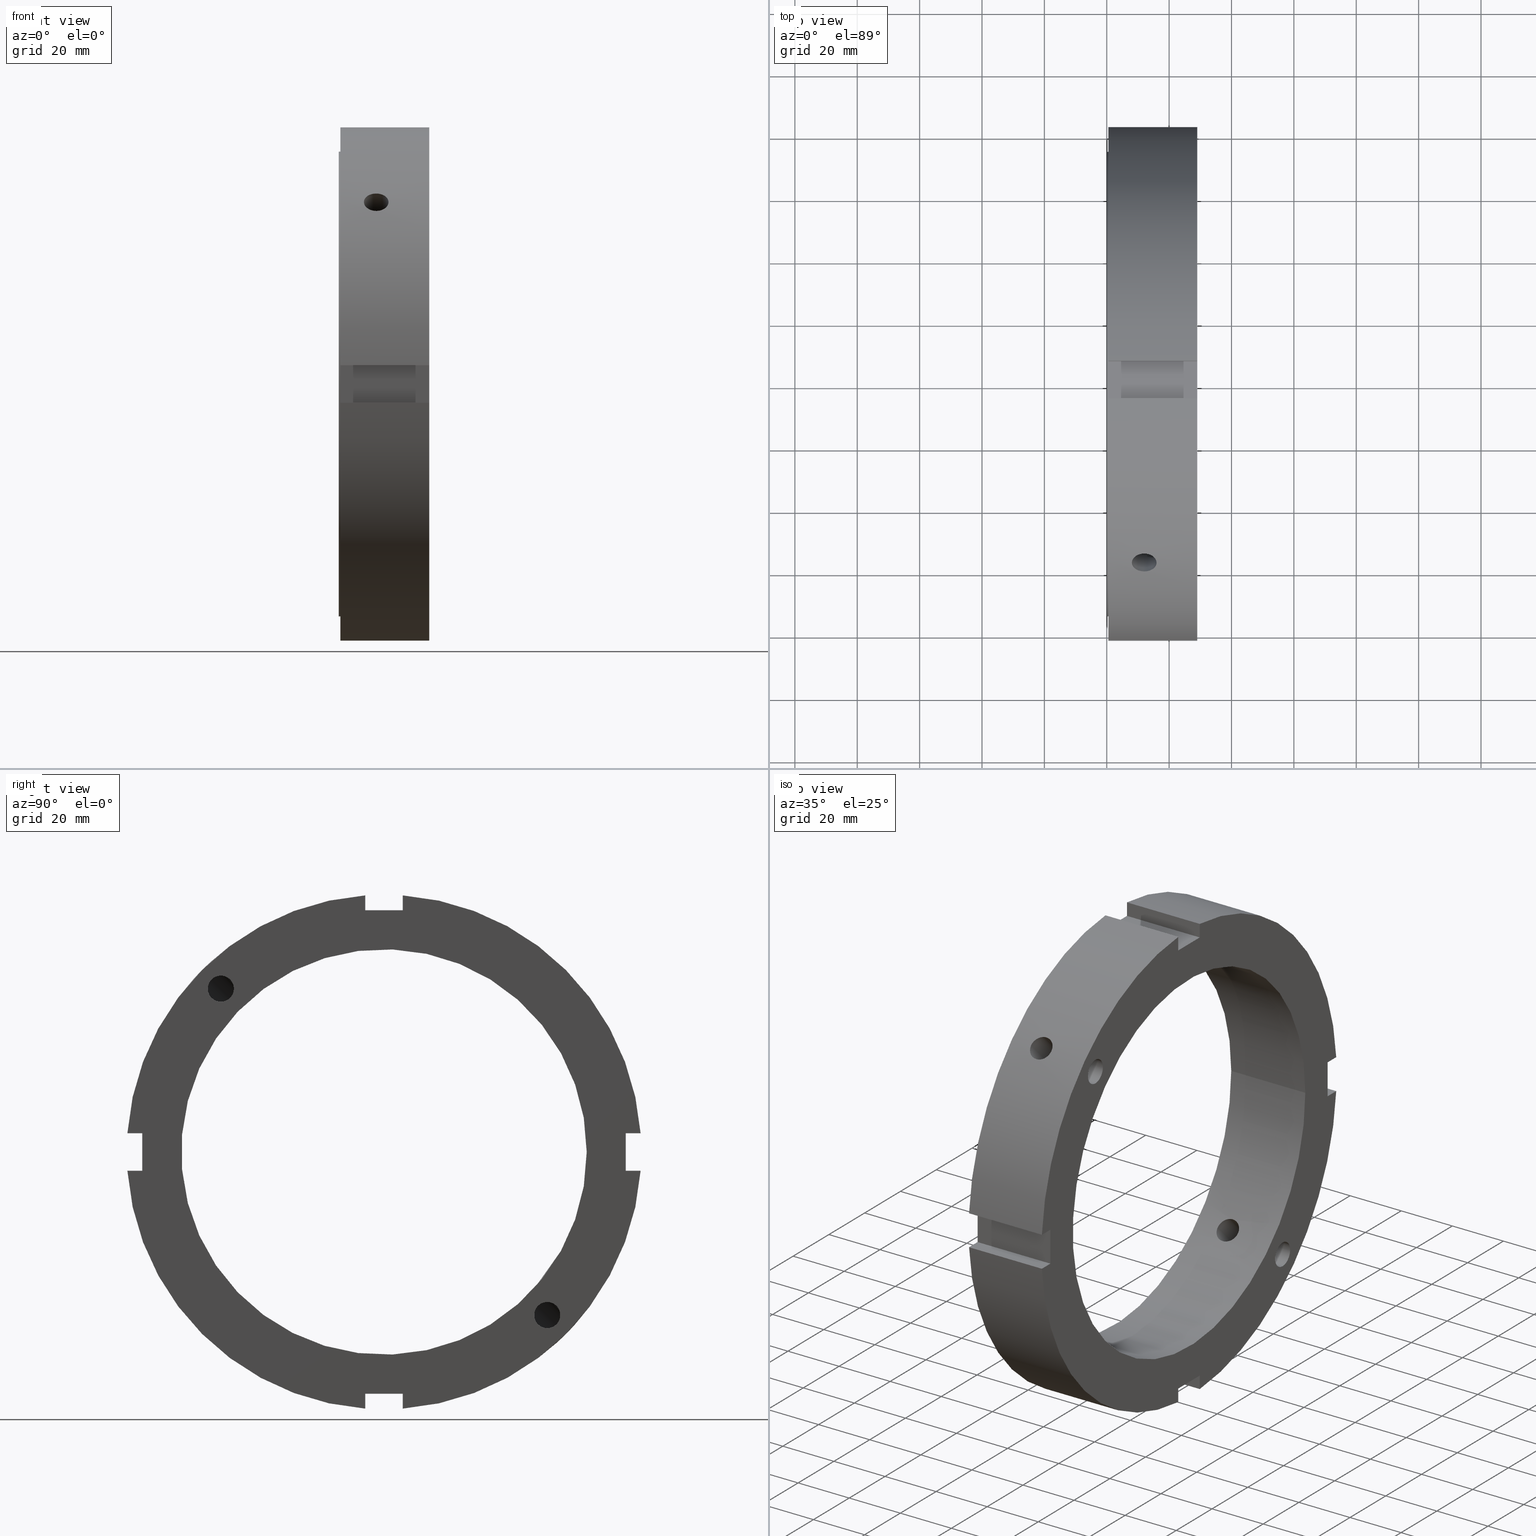
[diagram: canonical four-view strip — front | top / right | iso, engineering-drawing reading convention]
A machine part, canonical four-view strip (front | top / right | iso — engineering-drawing reading convention). The complete STEP part file that produces these views, byte-faithful:
ISO-10303-21;
HEADER;
/****************************************************************
 * Generated by software with PDElib inside                    *
 * PDElib Version v51a, created Wed 11/30/2011                  *
 * ITI Transcendata (http://www.transcendata.com/)              *
 ****************************************************************/
FILE_DESCRIPTION((''),'2;1');
FILE_NAME('C:\\Users\\sugidesign\\Documents\\Fukuda\\3Ddata\\ZMVtype\\FKD ZMV130.stp','2014-02-21T22:57:49',('sugidesign'),(''),'Autodesk Inventor LT ','Autodesk Inventor LT ','');
FILE_SCHEMA(('CONFIG_CONTROL_DESIGN'));
ENDSEC;
DATA;
#5=APPLICATION_CONTEXT('configuration controlled 3D designs of mechanical parts and assemblies');
#6=APPLICATION_PROTOCOL_DEFINITION('International Standard','ap203_configuration_controlled_3d_design_of_mechanical_parts_and_assemblies_mim_lf',2004,#5);
#7=PRODUCT_CONTEXT('',#5,'mechanical');
#8=PRODUCT('FKD ZMV130','FKD ZMV130',$,(#7));
#9=PRODUCT_RELATED_PRODUCT_CATEGORY('part',$,(#8));
#10=PRODUCT_DEFINITION_FORMATION('',$,#8);
#11=PRODUCT_DEFINITION_CONTEXT('part definition',#5,'design');
#12=PRODUCT_DEFINITION('',$,#10,#11);
#18=(NAMED_UNIT(*)PLANE_ANGLE_UNIT()SI_UNIT($,.RADIAN.));
#19=DIMENSIONAL_EXPONENTS(0.0,0.0,0.0,0.0,0.0,0.0,0.0);
#20=PLANE_ANGLE_MEASURE_WITH_UNIT(PLANE_ANGLE_MEASURE(0.0174532925),#18);
#24=(CONVERSION_BASED_UNIT('DEGREE',#20)NAMED_UNIT(#19)PLANE_ANGLE_UNIT());
#28=(NAMED_UNIT(*)SI_UNIT($,.STERADIAN.)SOLID_ANGLE_UNIT());
#32=(LENGTH_UNIT()NAMED_UNIT(*)SI_UNIT(.MILLI.,.METRE.));
#34=UNCERTAINTY_MEASURE_WITH_UNIT(LENGTH_MEASURE(0.01),#32,'DISTANCE_ACCURACY_VALUE','');
#36=(GEOMETRIC_REPRESENTATION_CONTEXT(3)GLOBAL_UNCERTAINTY_ASSIGNED_CONTEXT((#34))GLOBAL_UNIT_ASSIGNED_CONTEXT((#24,#28,#32))REPRESENTATION_CONTEXT('None','None'));
#37=AXIS2_PLACEMENT_3D('',#38,#39,#40);
#38=CARTESIAN_POINT('',(0.0,0.0,0.0));
#39=DIRECTION('',(0.0,0.0,1.0));
#40=DIRECTION('',(1.0,0.0,0.0));
#41=SHAPE_REPRESENTATION('',(#37),#36);
#42=PRODUCT_DEFINITION_SHAPE('','',#12);
#43=SHAPE_DEFINITION_REPRESENTATION(#42,#41);
#49=(NAMED_UNIT(*)PLANE_ANGLE_UNIT()SI_UNIT($,.RADIAN.));
#50=DIMENSIONAL_EXPONENTS(0.0,0.0,0.0,0.0,0.0,0.0,0.0);
#51=PLANE_ANGLE_MEASURE_WITH_UNIT(PLANE_ANGLE_MEASURE(0.0174532925),#49);
#55=(CONVERSION_BASED_UNIT('DEGREE',#51)NAMED_UNIT(#50)PLANE_ANGLE_UNIT());
#59=(NAMED_UNIT(*)SI_UNIT($,.STERADIAN.)SOLID_ANGLE_UNIT());
#63=(LENGTH_UNIT()NAMED_UNIT(*)SI_UNIT(.MILLI.,.METRE.));
#65=UNCERTAINTY_MEASURE_WITH_UNIT(LENGTH_MEASURE(0.000001),#63,'DISTANCE_ACCURACY_VALUE','');
#67=(GEOMETRIC_REPRESENTATION_CONTEXT(3)GLOBAL_UNCERTAINTY_ASSIGNED_CONTEXT((#65))GLOBAL_UNIT_ASSIGNED_CONTEXT((#55,#59,#63))REPRESENTATION_CONTEXT('','3D'));
#68=CARTESIAN_POINT('',(20.999999999999986,-52.325901807804492,52.325901807804527));
#69=DIRECTION('',(-1.0,0.0,0.0));
#70=DIRECTION('',(0.0,-1.0,0.0));
#71=AXIS2_PLACEMENT_3D('',#68,#69,#70);
#72=CYLINDRICAL_SURFACE('',#71,4.188);
#73=CARTESIAN_POINT('',(28.999999999999986,-56.513901807804494,52.325901807804527));
#74=VERTEX_POINT('',#73);
#75=CARTESIAN_POINT('',(28.999999999999986,-52.325901807804492,52.325901807804527));
#76=DIRECTION('',(-1.0,0.0,0.0));
#77=DIRECTION('',(0.0,-1.0,0.0));
#78=AXIS2_PLACEMENT_3D('',#75,#76,#77);
#79=CIRCLE('',#78,4.188);
#80=EDGE_CURVE('',#74,#74,#79,.T.);
#81=ORIENTED_EDGE('',*,*,#80,.F.);
#82=EDGE_LOOP('',(#81));
#83=FACE_OUTER_BOUND('',#82,.T.);
#84=CARTESIAN_POINT('',(12.999999999999986,-53.81619970367155,48.412034643276051));
#85=VERTEX_POINT('',#84);
#86=CARTESIAN_POINT('',(12.999999999999986,-48.412034643276016,53.8161997036716));
#87=VERTEX_POINT('',#86);
#88=CARTESIAN_POINT('',(12.999999999999982,-53.816199703671543,48.412034643276051));
#89=CARTESIAN_POINT('',(13.182626626901421,-53.707051615509151,48.370473915921643));
#90=CARTESIAN_POINT('',(13.359650843761122,-53.578367369335751,48.326829536229724));
#91=CARTESIAN_POINT('',(13.99755322760786,-53.054419757535953,48.182844772653219));
#92=CARTESIAN_POINT('',(14.431961554377931,-52.578197631693982,48.117510645065266));
#93=CARTESIAN_POINT('',(15.114248174209568,-51.6639338829211,48.168145887483995));
#94=CARTESIAN_POINT('',(15.415601356650225,-51.169927154239048,48.266984023685701));
#95=CARTESIAN_POINT('',(15.729475121457844,-50.450104294716667,48.572414741304122));
#96=CARTESIAN_POINT('',(15.81185844248466,-50.213271514724184,48.699758695423903));
#97=CARTESIAN_POINT('',(15.922144777571919,-49.765503013234436,49.000773443255682));
#98=CARTESIAN_POINT('',(15.949999999999989,-49.554586661026356,49.17449055536413));
#99=CARTESIAN_POINT('',(15.949999999999989,-49.174490555364059,49.554586661026427));
#100=CARTESIAN_POINT('',(15.922144777571908,-49.000773443255611,49.765503013234508));
#101=CARTESIAN_POINT('',(15.811858442484645,-48.699758695423839,50.213271514724269));
#102=CARTESIAN_POINT('',(15.729475121457831,-48.572414741304073,50.450104294716738));
#103=CARTESIAN_POINT('',(15.415601356650194,-48.266984023685644,51.169927154239133));
#104=CARTESIAN_POINT('',(15.114248174209566,-48.168145887483945,51.663933882921206));
#105=CARTESIAN_POINT('',(14.431961554377914,-48.117510645065238,52.578197631694088));
#106=CARTESIAN_POINT('',(13.997553227607817,-48.182844772653191,53.054419757536024));
#107=CARTESIAN_POINT('',(13.359650843761084,-48.326829536229681,53.578367369335808));
#108=CARTESIAN_POINT('',(13.182626626901419,-48.370473915921622,53.707051615509229));
#109=CARTESIAN_POINT('',(12.999999999999998,-48.412034643276023,53.816199703671614));
#110=B_SPLINE_CURVE_WITH_KNOTS('',3,(#88,#89,#90,#91,#92,#93,#94,#95,#96,#97,#98,#99,#100,#101,#102,#103,#104,#105,#106,#107,#108,#109),.UNSPECIFIED.,.F.,.U.,(4,2,2,2,2,2,2,2,2,2,4),(0.113466216021182,0.181311710729586,0.362623421459171,0.523884541749019,0.604515101893943,0.685145662038866,0.765776222183791,0.846406782328715,1.007667902618564,1.188979613348153,1.25682510805655),.UNSPECIFIED.);
#111=EDGE_CURVE('',#85,#87,#110,.T.);
#112=ORIENTED_EDGE('',*,*,#111,.F.);
#113=CARTESIAN_POINT('',(12.999999999999986,-56.239768972332975,50.835603911937461));
#114=VERTEX_POINT('',#113);
#115=CARTESIAN_POINT('',(12.999999999999986,-52.325901807804492,52.325901807804527));
#116=DIRECTION('',(-1.0,0.0,0.0));
#117=DIRECTION('',(0.0,-1.0,0.0));
#118=AXIS2_PLACEMENT_3D('',#115,#116,#117);
#119=CIRCLE('',#118,4.188);
#120=EDGE_CURVE('',#85,#114,#119,.T.);
#121=ORIENTED_EDGE('',*,*,#120,.T.);
#122=CARTESIAN_POINT('',(12.999999999999986,-50.835603911937433,56.23976897233301));
#123=VERTEX_POINT('',#122);
#124=CARTESIAN_POINT('',(13.000000000000005,-50.835603911937412,56.239768972332996));
#125=CARTESIAN_POINT('',(13.18262662690141,-50.944752000099783,56.281329699687397));
#126=CARTESIAN_POINT('',(13.359650843761079,-51.073436246273204,56.324974079379338));
#127=CARTESIAN_POINT('',(13.99755322760781,-51.59738385807298,56.468958842955843));
#128=CARTESIAN_POINT('',(14.431961554377914,-52.073605983914916,56.534292970543767));
#129=CARTESIAN_POINT('',(15.114248174209564,-52.987869732687798,56.483657728125067));
#130=CARTESIAN_POINT('',(15.415601356650191,-53.481876461369865,56.384819591923375));
#131=CARTESIAN_POINT('',(15.729475121457828,-54.201699320892274,56.079388874304954));
#132=CARTESIAN_POINT('',(15.811858442484638,-54.438532100884743,55.952044920185187));
#133=CARTESIAN_POINT('',(15.922144777571907,-54.886300602374504,55.65103017235343));
#134=CARTESIAN_POINT('',(15.949999999999989,-55.097216954582578,55.477313060244946));
#135=CARTESIAN_POINT('',(15.949999999999989,-55.477313060244875,55.097216954582649));
#136=CARTESIAN_POINT('',(15.922144777571916,-55.651030172353366,54.886300602374583));
#137=CARTESIAN_POINT('',(15.811858442484652,-55.952044920185145,54.438532100884828));
#138=CARTESIAN_POINT('',(15.729475121457842,-56.079388874304911,54.201699320892345));
#139=CARTESIAN_POINT('',(15.415601356650219,-56.384819591923332,53.481876461369964));
#140=CARTESIAN_POINT('',(15.114248174209571,-56.48365772812501,52.987869732687905));
#141=CARTESIAN_POINT('',(14.431961554377931,-56.534292970543738,52.073605983915023));
#142=CARTESIAN_POINT('',(13.997553227607861,-56.468958842955807,51.597383858073059));
#143=CARTESIAN_POINT('',(13.359650843761123,-56.324974079379295,51.073436246273253));
#144=CARTESIAN_POINT('',(13.182626626901406,-56.281329699687383,50.944752000099868));
#145=CARTESIAN_POINT('',(12.999999999999973,-56.239768972332982,50.835603911937483));
#146=B_SPLINE_CURVE_WITH_KNOTS('',3,(#124,#125,#126,#127,#128,#129,#130,#131,#132,#133,#134,#135,#136,#137,#138,#139,#140,#141,#142,#143,#144,#145),.UNSPECIFIED.,.F.,.U.,(4,2,2,2,2,2,2,2,2,2,4),(1.483757540098934,1.551603034807329,1.732914745536918,1.894175865826766,1.974806425971691,2.055436986116615,2.136067546261539,2.216698106406463,2.377959226696311,2.559270937425896,2.627116432134299),.UNSPECIFIED.);
#147=EDGE_CURVE('',#123,#114,#146,.T.);
#148=ORIENTED_EDGE('',*,*,#147,.F.);
#149=CARTESIAN_POINT('',(12.999999999999986,-52.325901807804492,52.325901807804527));
#150=DIRECTION('',(-1.0,0.0,0.0));
#151=DIRECTION('',(0.0,-1.0,0.0));
#152=AXIS2_PLACEMENT_3D('',#149,#150,#151);
#153=CIRCLE('',#152,4.188);
#154=EDGE_CURVE('',#123,#87,#153,.T.);
#155=ORIENTED_EDGE('',*,*,#154,.T.);
#156=EDGE_LOOP('',(#112,#121,#148,#155));
#157=FACE_BOUND('',#156,.T.);
#158=ADVANCED_FACE('',(#83,#157),#72,.F.);
#159=CARTESIAN_POINT('',(11.741797863756274,-52.325901807804492,52.325901807804527));
#160=DIRECTION('',(1.0,0.0,0.0));
#161=DIRECTION('',(0.0,-1.0,0.0));
#162=AXIS2_PLACEMENT_3D('',#159,#160,#161);
#163=CONICAL_SURFACE('',#162,2.094,59.000000000000007);
#164=CARTESIAN_POINT('',(12.99999999999998,-56.239768972332968,50.835603911937461));
#165=CARTESIAN_POINT('',(12.875286800726712,-55.852721968718122,50.402402433809158));
#166=CARTESIAN_POINT('',(12.806941641477296,-55.450581737363215,49.982246490279366));
#167=CARTESIAN_POINT('',(12.806941641477296,-55.060069431346442,49.591734184262599));
#168=CARTESIAN_POINT('',(12.806941641477296,-54.669557125329661,49.201221878245818));
#169=CARTESIAN_POINT('',(12.875286800726705,-54.249401181799868,48.799081646890912));
#170=CARTESIAN_POINT('',(12.999999999999979,-53.81619970367155,48.412034643276051));
#171=B_SPLINE_CURVE_WITH_KNOTS('',3,(#164,#165,#166,#167,#168,#169,#170),.UNSPECIFIED.,.F.,.U.,(4,3,4),(-0.165680339832753,0.0,0.165680339832757),.UNSPECIFIED.);
#172=EDGE_CURVE('',#114,#85,#171,.T.);
#173=ORIENTED_EDGE('',*,*,#172,.F.);
#174=ORIENTED_EDGE('',*,*,#120,.F.);
#175=EDGE_LOOP('',(#173,#174));
#176=FACE_OUTER_BOUND('',#175,.T.);
#177=ADVANCED_FACE('',(#176),#163,.F.);
#178=CARTESIAN_POINT('',(11.741797863756274,-52.325901807804492,52.325901807804527));
#179=DIRECTION('',(1.0,0.0,0.0));
#180=DIRECTION('',(0.0,-1.0,0.0));
#181=AXIS2_PLACEMENT_3D('',#178,#179,#180);
#182=CONICAL_SURFACE('',#181,2.094,59.000000000000007);
#183=CARTESIAN_POINT('',(12.999999999999991,-48.412034643276002,53.816199703671607));
#184=CARTESIAN_POINT('',(12.875286800726723,-48.799081646890855,54.249401181799911));
#185=CARTESIAN_POINT('',(12.806941641477296,-49.201221878245747,54.66955712532971));
#186=CARTESIAN_POINT('',(12.806941641477296,-49.982246490279294,55.450581737363265));
#187=CARTESIAN_POINT('',(12.875286800726721,-50.402402433809108,55.852721968718164));
#188=CARTESIAN_POINT('',(12.999999999999991,-50.835603911937419,56.239768972333017));
#189=B_SPLINE_CURVE_WITH_KNOTS('',3,(#183,#184,#185,#186,#187,#188),.UNSPECIFIED.,.F.,.U.,(4,2,4),(1.971982271476835,2.137662611309589,2.303342951142345),.UNSPECIFIED.);
#190=EDGE_CURVE('',#87,#123,#189,.T.);
#191=ORIENTED_EDGE('',*,*,#190,.F.);
#192=ORIENTED_EDGE('',*,*,#154,.F.);
#193=EDGE_LOOP('',(#191,#192));
#194=FACE_OUTER_BOUND('',#193,.T.);
#195=ADVANCED_FACE('',(#194),#182,.F.);
#196=CARTESIAN_POINT('',(11.999999999999989,-165.83576212626753,165.83576212626758));
#197=DIRECTION('',(0.0,-0.707106781186547,0.707106781186548));
#198=DIRECTION('',(1.0,0.0,0.0));
#199=AXIS2_PLACEMENT_3D('',#196,#197,#198);
#200=CYLINDRICAL_SURFACE('',#199,3.95);
#201=CARTESIAN_POINT('',(11.999999999999989,-61.062478424162236,55.476334852788554));
#202=VERTEX_POINT('',#201);
#203=CARTESIAN_POINT('',(11.999999999999989,-61.062478424162229,55.476334852788554));
#204=CARTESIAN_POINT('',(11.503947800822555,-61.062478424162229,55.476334852788554));
#205=CARTESIAN_POINT('',(10.974883153584518,-60.995860655348324,55.549938723222951));
#206=CARTESIAN_POINT('',(10.001707218843947,-60.723422382487882,55.847620212128575));
#207=CARTESIAN_POINT('',(9.55758950625345,-60.51742318316721,56.071513228306046));
#208=CARTESIAN_POINT('',(8.856266984643291,-60.038312138560698,56.584222005358328));
#209=CARTESIAN_POINT('',(8.552287237655428,-59.733215904459072,56.907203104077304));
#210=CARTESIAN_POINT('',(8.149151646845423,-59.057687911437881,57.607953842950124));
#211=CARTESIAN_POINT('',(8.049999999999985,-58.687071259462641,57.985547636317705));
#212=CARTESIAN_POINT('',(8.049999999999992,-57.985547636317619,58.687071259462719));
#213=CARTESIAN_POINT('',(8.149151646845438,-57.607953842950025,59.057687911437959));
#214=CARTESIAN_POINT('',(8.552287237655463,-56.90720310407719,59.733215904459165));
#215=CARTESIAN_POINT('',(8.856266984643286,-56.584222005358214,60.038312138560812));
#216=CARTESIAN_POINT('',(9.557589506253457,-56.071513228305946,60.517423183167324));
#217=CARTESIAN_POINT('',(10.001707218843981,-55.847620212128504,60.723422382487946));
#218=CARTESIAN_POINT('',(10.974883153584546,-55.549938723222894,60.995860655348373));
#219=CARTESIAN_POINT('',(11.503947800822562,-55.476334852788497,61.0624784241623));
#220=CARTESIAN_POINT('',(12.496052199177416,-55.476334852788497,61.062478424162308));
#221=CARTESIAN_POINT('',(13.025116846415441,-55.549938723222894,60.99586065534838));
#222=CARTESIAN_POINT('',(13.998292781156007,-55.847620212128504,60.723422382487954));
#223=CARTESIAN_POINT('',(14.442410493746522,-56.071513228305946,60.517423183167331));
#224=CARTESIAN_POINT('',(15.143733015356693,-56.584222005358214,60.038312138560812));
#225=CARTESIAN_POINT('',(15.447712762344519,-56.907203104077198,59.733215904459165));
#226=CARTESIAN_POINT('',(15.850848353154543,-57.607953842950025,59.057687911437959));
#227=CARTESIAN_POINT('',(15.949999999999985,-57.985547636317619,58.687071259462719));
#228=CARTESIAN_POINT('',(15.949999999999992,-58.687071259462641,57.985547636317705));
#229=CARTESIAN_POINT('',(15.850848353154554,-59.057687911437867,57.607953842950138));
#230=CARTESIAN_POINT('',(15.447712762344549,-59.733215904459072,56.907203104077304));
#231=CARTESIAN_POINT('',(15.143733015356688,-60.038312138560705,56.584222005358328));
#232=CARTESIAN_POINT('',(14.442410493746527,-60.51742318316721,56.071513228306046));
#233=CARTESIAN_POINT('',(13.998292781156024,-60.723422382487882,55.847620212128568));
#234=CARTESIAN_POINT('',(13.025116846415457,-60.995860655348309,55.549938723222951));
#235=CARTESIAN_POINT('',(12.496052199177418,-61.062478424162222,55.476334852788554));
#236=CARTESIAN_POINT('',(11.999999999999986,-61.062478424162222,55.476334852788554));
#237=B_SPLINE_CURVE_WITH_KNOTS('',3,(#203,#204,#205,#206,#207,#208,#209,#210,#211,#212,#213,#214,#215,#216,#217,#218,#219,#220,#221,#222,#223,#224,#225,#226,#227,#228,#229,#230,#231,#232,#233,#234,#235,#236),.UNSPECIFIED.,.T.,.U.,(4,2,2,2,2,2,2,2,2,2,2,2,2,2,2,2,4),(0.0,0.14881565975323,0.297631319506459,0.446446952832977,0.595262586159495,0.744078219486015,0.892893852812535,1.041709512565763,1.190525172318991,1.339340832072219,1.488156491825447,1.636972125151968,1.785787758478488,1.934603391805005,2.083419025131523,2.232234684884753,2.381050344637982),.UNSPECIFIED.);
#238=EDGE_CURVE('',#202,#202,#237,.T.);
#239=ORIENTED_EDGE('',*,*,#238,.F.);
#240=EDGE_LOOP('',(#239));
#241=FACE_OUTER_BOUND('',#240,.T.);
#242=ORIENTED_EDGE('',*,*,#172,.T.);
#243=ORIENTED_EDGE('',*,*,#111,.T.);
#244=ORIENTED_EDGE('',*,*,#190,.T.);
#245=ORIENTED_EDGE('',*,*,#147,.T.);
#246=EDGE_LOOP('',(#242,#243,#244,#245));
#247=FACE_BOUND('',#246,.T.);
#248=CARTESIAN_POINT('',(11.999999999999989,-48.670067655076551,43.083924083702868));
#249=VERTEX_POINT('',#248);
#250=CARTESIAN_POINT('',(11.999999999999989,-48.670067655076537,43.083924083702875));
#251=CARTESIAN_POINT('',(12.496102050344469,-48.670067655076537,43.083924083702875));
#252=CARTESIAN_POINT('',(13.025188117993965,-48.604380689903522,43.158486288727417));
#253=CARTESIAN_POINT('',(13.998350295829169,-48.335340406436849,43.459586154405031));
#254=CARTESIAN_POINT('',(14.442436781138639,-48.131760595438209,43.685887816563387));
#255=CARTESIAN_POINT('',(15.143706628434225,-47.657215444753106,44.203087994806999));
#256=CARTESIAN_POINT('',(15.447678856421454,-47.354550594595466,44.528456377879678));
#257=CARTESIAN_POINT('',(15.850828922782901,-46.68242969663158,45.232594962372431));
#258=CARTESIAN_POINT('',(15.949999999999989,-46.312737739209055,45.611143815042112));
#259=CARTESIAN_POINT('',(15.949999999999989,-45.611143815042077,46.312737739209084));
#260=CARTESIAN_POINT('',(15.85082892278291,-45.232594962372389,46.682429696631608));
#261=CARTESIAN_POINT('',(15.447678856421467,-44.52845637787965,47.354550594595494));
#262=CARTESIAN_POINT('',(15.143706628434227,-44.203087994806971,47.657215444753135));
#263=CARTESIAN_POINT('',(14.442436781138641,-43.685887816563351,48.131760595438244));
#264=CARTESIAN_POINT('',(13.998350295829189,-43.459586154404981,48.335340406436906));
#265=CARTESIAN_POINT('',(13.025188117993986,-43.15848628872736,48.604380689903579));
#266=CARTESIAN_POINT('',(12.496102050344467,-43.083924083702819,48.670067655076572));
#267=CARTESIAN_POINT('',(11.50389794965551,-43.083924083702819,48.670067655076572));
#268=CARTESIAN_POINT('',(10.974811882005991,-43.15848628872736,48.604380689903579));
#269=CARTESIAN_POINT('',(10.001649704170788,-43.459586154404981,48.335340406436906));
#270=CARTESIAN_POINT('',(9.557563218861334,-43.685887816563351,48.131760595438244));
#271=CARTESIAN_POINT('',(8.856293371565748,-44.203087994806971,47.657215444753135));
#272=CARTESIAN_POINT('',(8.552321143578508,-44.52845637787965,47.354550594595494));
#273=CARTESIAN_POINT('',(8.149171077217069,-45.232594962372389,46.682429696631608));
#274=CARTESIAN_POINT('',(8.049999999999987,-45.611143815042077,46.312737739209084));
#275=CARTESIAN_POINT('',(8.04999999999999,-46.312737739209055,45.611143815042112));
#276=CARTESIAN_POINT('',(8.149171077217076,-46.68242969663158,45.232594962372431));
#277=CARTESIAN_POINT('',(8.552321143578523,-47.354550594595466,44.528456377879678));
#278=CARTESIAN_POINT('',(8.856293371565752,-47.657215444753106,44.203087994806999));
#279=CARTESIAN_POINT('',(9.557563218861336,-48.131760595438209,43.685887816563387));
#280=CARTESIAN_POINT('',(10.001649704170802,-48.335340406436849,43.459586154405031));
#281=CARTESIAN_POINT('',(10.97481188200601,-48.604380689903522,43.158486288727417));
#282=CARTESIAN_POINT('',(11.50389794965551,-48.670067655076537,43.083924083702875));
#283=CARTESIAN_POINT('',(11.999999999999991,-48.670067655076537,43.083924083702875));
#284=B_SPLINE_CURVE_WITH_KNOTS('',3,(#250,#251,#252,#253,#254,#255,#256,#257,#258,#259,#260,#261,#262,#263,#264,#265,#266,#267,#268,#269,#270,#271,#272,#273,#274,#275,#276,#277,#278,#279,#280,#281,#282,#283),.UNSPECIFIED.,.T.,.U.,(4,2,2,2,2,2,2,2,2,2,2,2,2,2,2,2,4),(0.0,0.148830615103344,0.297661230206687,0.446491776632011,0.595322323057334,0.744152869482658,0.892983415907982,1.041814031011326,1.190644646114669,1.339475261218013,1.488305876321356,1.63713642274668,1.785966969172004,1.934797515597328,2.083628062022651,2.232458677125995,2.381289292229338),.UNSPECIFIED.);
#285=EDGE_CURVE('',#249,#249,#284,.T.);
#286=ORIENTED_EDGE('',*,*,#285,.F.);
#287=EDGE_LOOP('',(#286));
#288=FACE_BOUND('',#287,.T.);
#289=ADVANCED_FACE('',(#241,#247,#288),#200,.F.);
#290=CARTESIAN_POINT('',(11.741797863756274,52.32590180780452,-52.325901807804499));
#291=DIRECTION('',(1.0,0.0,0.0));
#292=DIRECTION('',(0.0,0.0,-1.0));
#293=AXIS2_PLACEMENT_3D('',#290,#291,#292);
#294=CONICAL_SURFACE('',#293,2.094,59.000000000000007);
#295=CARTESIAN_POINT('',(12.999999999999986,48.412034643276044,-53.816199703671558));
#296=VERTEX_POINT('',#295);
#297=CARTESIAN_POINT('',(12.999999999999986,50.835603911937454,-56.239768972332982));
#298=VERTEX_POINT('',#297);
#299=CARTESIAN_POINT('',(12.999999999999986,48.412034643276044,-53.816199703671558));
#300=CARTESIAN_POINT('',(12.875286802238472,48.799081642199162,-54.249401176548659));
#301=CARTESIAN_POINT('',(12.806941641477296,49.201221881100317,-54.669557128184181));
#302=CARTESIAN_POINT('',(12.806941641477296,49.591734184262592,-55.060069431346449));
#303=CARTESIAN_POINT('',(12.806941641477296,49.982246490279351,-55.450581737363215));
#304=CARTESIAN_POINT('',(12.875286800726711,50.402402433809115,-55.852721968718114));
#305=CARTESIAN_POINT('',(12.999999999999986,50.83560391193744,-56.239768972332975));
#306=B_SPLINE_CURVE_WITH_KNOTS('',3,(#299,#300,#301,#302,#303,#304,#305),.UNSPECIFIED.,.F.,.U.,(4,3,4),(-0.165680338621693,0.0,0.16568033983275),.UNSPECIFIED.);
#307=EDGE_CURVE('',#296,#298,#306,.T.);
#308=ORIENTED_EDGE('',*,*,#307,.F.);
#309=CARTESIAN_POINT('',(12.999999999999986,52.32590180780452,-52.325901807804499));
#310=DIRECTION('',(1.0,0.0,0.0));
#311=DIRECTION('',(0.0,0.0,-1.0));
#312=AXIS2_PLACEMENT_3D('',#309,#310,#311);
#313=CIRCLE('',#312,4.188);
#314=EDGE_CURVE('',#296,#298,#313,.T.);
#315=ORIENTED_EDGE('',*,*,#314,.T.);
#316=EDGE_LOOP('',(#308,#315));
#317=FACE_OUTER_BOUND('',#316,.T.);
#318=ADVANCED_FACE('',(#317),#294,.F.);
#319=CARTESIAN_POINT('',(11.741797863756274,52.32590180780452,-52.325901807804499));
#320=DIRECTION('',(1.0,0.0,0.0));
#321=DIRECTION('',(0.0,0.0,-1.0));
#322=AXIS2_PLACEMENT_3D('',#319,#320,#321);
#323=CONICAL_SURFACE('',#322,2.094,59.000000000000007);
#324=CARTESIAN_POINT('',(12.999999999999986,56.239768972332996,-50.83560391193744));
#325=VERTEX_POINT('',#324);
#326=CARTESIAN_POINT('',(12.999999999999986,53.816199703671586,-48.412034643276023));
#327=VERTEX_POINT('',#326);
#328=CARTESIAN_POINT('',(12.999999999999988,56.23976897233301,-50.83560391193744));
#329=CARTESIAN_POINT('',(12.875270423222801,55.852671141188637,-50.40234554521237));
#330=CARTESIAN_POINT('',(12.806941641477296,55.445864657544973,-49.977529410461024));
#331=CARTESIAN_POINT('',(12.806941641477296,54.66955712532971,-49.201221878245761));
#332=CARTESIAN_POINT('',(12.875286800726718,54.249401181799904,-48.799081646890883));
#333=CARTESIAN_POINT('',(12.999999999999989,53.816199703671586,-48.412034643276023));
#334=B_SPLINE_CURVE_WITH_KNOTS('',3,(#328,#329,#330,#331,#332,#333),.UNSPECIFIED.,.F.,.U.,(4,2,4),(1.964021321910511,2.127700374267121,2.293380714099871),.UNSPECIFIED.);
#335=EDGE_CURVE('',#325,#327,#334,.T.);
#336=ORIENTED_EDGE('',*,*,#335,.F.);
#337=CARTESIAN_POINT('',(12.999999999999986,52.32590180780452,-52.325901807804499));
#338=DIRECTION('',(1.0,0.0,0.0));
#339=DIRECTION('',(0.0,0.0,-1.0));
#340=AXIS2_PLACEMENT_3D('',#337,#338,#339);
#341=CIRCLE('',#340,4.188);
#342=EDGE_CURVE('',#325,#327,#341,.T.);
#343=ORIENTED_EDGE('',*,*,#342,.T.);
#344=EDGE_LOOP('',(#336,#343));
#345=FACE_OUTER_BOUND('',#344,.T.);
#346=ADVANCED_FACE('',(#345),#323,.F.);
#347=CARTESIAN_POINT('',(20.999999999999986,52.32590180780452,-52.325901807804499));
#348=DIRECTION('',(1.0,0.0,0.0));
#349=DIRECTION('',(0.0,0.0,-1.0));
#350=AXIS2_PLACEMENT_3D('',#347,#348,#349);
#351=CYLINDRICAL_SURFACE('',#350,4.188);
#352=CARTESIAN_POINT('',(12.999999999999982,50.835603911937454,-56.239768972332982));
#353=CARTESIAN_POINT('',(13.18262662690087,50.94475200009952,-56.281329699687262));
#354=CARTESIAN_POINT('',(13.359650843760857,51.073436246273076,-56.324974079379267));
#355=CARTESIAN_POINT('',(13.997553227607867,51.59738385807308,-56.468958842955821));
#356=CARTESIAN_POINT('',(14.431961554377928,52.073605983915066,-56.534292970543746));
#357=CARTESIAN_POINT('',(15.114248174209564,52.987869732687955,-56.483657728125024));
#358=CARTESIAN_POINT('',(15.415601356650237,53.481876461369993,-56.384819591923332));
#359=CARTESIAN_POINT('',(15.729475121457849,54.201699320892359,-56.079388874304911));
#360=CARTESIAN_POINT('',(15.81185844248466,54.438532100884835,-55.952044920185131));
#361=CARTESIAN_POINT('',(15.922144777571916,54.886300602374575,-55.651030172353359));
#362=CARTESIAN_POINT('',(15.949999999999989,55.097216954582642,-55.477313060244882));
#363=CARTESIAN_POINT('',(15.949999999999989,55.477313060244938,-55.097216954582592));
#364=CARTESIAN_POINT('',(15.922144777571907,55.651030172353416,-54.886300602374511));
#365=CARTESIAN_POINT('',(15.811858442484638,55.95204492018518,-54.438532100884757));
#366=CARTESIAN_POINT('',(15.729475121457828,56.079388874304939,-54.201699320892288));
#367=CARTESIAN_POINT('',(15.415601356650191,56.384819591923367,-53.481876461369879));
#368=CARTESIAN_POINT('',(15.114248174209564,56.483657728125053,-52.987869732687813));
#369=CARTESIAN_POINT('',(14.431961554377914,56.53429297054376,-52.073605983914923));
#370=CARTESIAN_POINT('',(13.99755322760781,56.468958842955828,-51.597383858072988));
#371=CARTESIAN_POINT('',(13.359650843760825,56.324974079379267,-51.073436246272991));
#372=CARTESIAN_POINT('',(13.18262662690085,56.281329699687277,-50.944752000099484));
#373=CARTESIAN_POINT('',(12.999999999999989,56.239768972332996,-50.835603911937433));
#374=B_SPLINE_CURVE_WITH_KNOTS('',3,(#352,#353,#354,#355,#356,#357,#358,#359,#360,#361,#362,#363,#364,#365,#366,#367,#368,#369,#370,#371,#372,#373),.UNSPECIFIED.,.F.,.U.,(4,2,2,2,2,2,2,2,2,2,4),(0.113466216021082,0.181311710729588,0.362623421459176,0.523884541749021,0.604515101893944,0.685145662038867,0.765776222183791,0.846406782328715,1.007667902618564,1.188979613348153,1.256825108056649),.UNSPECIFIED.);
#375=EDGE_CURVE('',#298,#325,#374,.T.);
#376=ORIENTED_EDGE('',*,*,#375,.F.);
#377=ORIENTED_EDGE('',*,*,#314,.F.);
#378=CARTESIAN_POINT('',(12.999999999999986,53.816199703671586,-48.41203464327603));
#379=CARTESIAN_POINT('',(13.182626626900857,53.707051615509528,-48.370473915921757));
#380=CARTESIAN_POINT('',(13.359650843760821,53.578367369336007,-48.326829536229752));
#381=CARTESIAN_POINT('',(13.997553227607817,53.054419757536017,-48.182844772653198));
#382=CARTESIAN_POINT('',(14.431961554377914,52.578197631694081,-48.117510645065245));
#383=CARTESIAN_POINT('',(15.114248174209566,51.663933882921199,-48.168145887483959));
#384=CARTESIAN_POINT('',(15.415601356650194,51.169927154239126,-48.266984023685652));
#385=CARTESIAN_POINT('',(15.729475121457831,50.450104294716731,-48.57241474130408));
#386=CARTESIAN_POINT('',(15.811858442484645,50.213271514724262,-48.699758695423853));
#387=CARTESIAN_POINT('',(15.922144777571908,49.7655030132345,-49.000773443255625));
#388=CARTESIAN_POINT('',(15.949999999999989,49.55458666102642,-49.174490555364073));
#389=CARTESIAN_POINT('',(15.949999999999989,49.174490555364123,-49.554586661026363));
#390=CARTESIAN_POINT('',(15.922144777571921,49.00077344325566,-49.765503013234429));
#391=CARTESIAN_POINT('',(15.811858442484663,48.699758695423881,-50.21327151472417));
#392=CARTESIAN_POINT('',(15.729475121457849,48.572414741304115,-50.45010429471666));
#393=CARTESIAN_POINT('',(15.415601356650235,48.266984023685694,-51.169927154239041));
#394=CARTESIAN_POINT('',(15.114248174209564,48.168145887484002,-51.663933882921071));
#395=CARTESIAN_POINT('',(14.431961554377931,48.117510645065273,-52.578197631693953));
#396=CARTESIAN_POINT('',(13.997553227607867,48.182844772653212,-53.054419757535953));
#397=CARTESIAN_POINT('',(13.359650843760862,48.326829536229781,-53.578367369335979));
#398=CARTESIAN_POINT('',(13.182626626900886,48.370473915921757,-53.707051615509499));
#399=CARTESIAN_POINT('',(12.999999999999991,48.412034643276044,-53.816199703671572));
#400=B_SPLINE_CURVE_WITH_KNOTS('',3,(#378,#379,#380,#381,#382,#383,#384,#385,#386,#387,#388,#389,#390,#391,#392,#393,#394,#395,#396,#397,#398,#399),.UNSPECIFIED.,.F.,.U.,(4,2,2,2,2,2,2,2,2,2,4),(1.48375754009883,1.55160303480733,1.732914745536918,1.894175865826767,1.974806425971691,2.055436986116616,2.136067546261539,2.216698106406462,2.377959226696307,2.559270937425894,2.6271164321344),.UNSPECIFIED.);
#401=EDGE_CURVE('',#327,#296,#400,.T.);
#402=ORIENTED_EDGE('',*,*,#401,.F.);
#403=ORIENTED_EDGE('',*,*,#342,.F.);
#404=EDGE_LOOP('',(#376,#377,#402,#403));
#405=FACE_OUTER_BOUND('',#404,.T.);
#406=CARTESIAN_POINT('',(28.999999999999986,52.32590180780452,-56.513901807804501));
#407=VERTEX_POINT('',#406);
#408=CARTESIAN_POINT('',(28.999999999999986,52.32590180780452,-52.325901807804499));
#409=DIRECTION('',(-1.0,0.0,0.0));
#410=DIRECTION('',(0.0,0.0,-1.0));
#411=AXIS2_PLACEMENT_3D('',#408,#409,#410);
#412=CIRCLE('',#411,4.188);
#413=EDGE_CURVE('',#407,#407,#412,.T.);
#414=ORIENTED_EDGE('',*,*,#413,.F.);
#415=EDGE_LOOP('',(#414));
#416=FACE_BOUND('',#415,.T.);
#417=ADVANCED_FACE('',(#405,#416),#351,.F.);
#418=CARTESIAN_POINT('',(11.999999999999989,165.83576212626755,-165.83576212626755));
#419=DIRECTION('',(0.0,-0.707106781186547,0.707106781186548));
#420=DIRECTION('',(1.0,0.0,0.0));
#421=AXIS2_PLACEMENT_3D('',#418,#419,#420);
#422=CYLINDRICAL_SURFACE('',#421,3.95);
#423=CARTESIAN_POINT('',(11.999999999999989,55.47633485278854,-61.062478424162244));
#424=VERTEX_POINT('',#423);
#425=CARTESIAN_POINT('',(11.999999999999986,55.47633485278854,-61.062478424162244));
#426=CARTESIAN_POINT('',(12.496052199177415,55.47633485278854,-61.062478424162244));
#427=CARTESIAN_POINT('',(13.025116846415434,55.54993872322293,-60.995860655348338));
#428=CARTESIAN_POINT('',(13.998292781156,55.84762021212854,-60.723422382487911));
#429=CARTESIAN_POINT('',(14.44241049374652,56.071513228305975,-60.517423183167281));
#430=CARTESIAN_POINT('',(15.143733015356691,56.584222005358249,-60.038312138560777));
#431=CARTESIAN_POINT('',(15.447712762344512,56.907203104077233,-59.733215904459122));
#432=CARTESIAN_POINT('',(15.850848353154539,57.607953842950067,-59.057687911437917));
#433=CARTESIAN_POINT('',(15.949999999999985,57.985547636317648,-58.687071259462684));
#434=CARTESIAN_POINT('',(15.949999999999992,58.68707125946267,-57.985547636317662));
#435=CARTESIAN_POINT('',(15.850848353154547,59.057687911437917,-57.607953842950081));
#436=CARTESIAN_POINT('',(15.447712762344532,59.733215904459129,-56.90720310407724));
#437=CARTESIAN_POINT('',(15.143733015356693,60.038312138560777,-56.584222005358257));
#438=CARTESIAN_POINT('',(14.442410493746522,60.517423183167281,-56.071513228305975));
#439=CARTESIAN_POINT('',(13.998292781156012,60.723422382487939,-55.847620212128525));
#440=CARTESIAN_POINT('',(13.025116846415443,60.995860655348366,-55.549938723222915));
#441=CARTESIAN_POINT('',(12.496052199177416,61.062478424162272,-55.476334852788519));
#442=CARTESIAN_POINT('',(11.50394780082256,61.062478424162272,-55.476334852788526));
#443=CARTESIAN_POINT('',(10.974883153584532,60.995860655348366,-55.549938723222915));
#444=CARTESIAN_POINT('',(10.001707218843965,60.723422382487939,-55.847620212128525));
#445=CARTESIAN_POINT('',(9.557589506253455,60.517423183167281,-56.071513228305975));
#446=CARTESIAN_POINT('',(8.856266984643286,60.038312138560777,-56.584222005358257));
#447=CARTESIAN_POINT('',(8.552287237655445,59.733215904459129,-56.90720310407724));
#448=CARTESIAN_POINT('',(8.149151646845427,59.057687911437917,-57.607953842950081));
#449=CARTESIAN_POINT('',(8.049999999999985,58.68707125946267,-57.985547636317662));
#450=CARTESIAN_POINT('',(8.049999999999992,57.985547636317648,-58.687071259462684));
#451=CARTESIAN_POINT('',(8.149151646845438,57.607953842950053,-59.057687911437924));
#452=CARTESIAN_POINT('',(8.552287237655463,56.907203104077226,-59.733215904459129));
#453=CARTESIAN_POINT('',(8.856266984643286,56.584222005358249,-60.038312138560777));
#454=CARTESIAN_POINT('',(9.557589506253457,56.071513228305975,-60.517423183167281));
#455=CARTESIAN_POINT('',(10.001707218843979,55.84762021212854,-60.723422382487911));
#456=CARTESIAN_POINT('',(10.974883153584543,55.54993872322293,-60.995860655348338));
#457=CARTESIAN_POINT('',(11.503947800822555,55.47633485278854,-61.062478424162244));
#458=CARTESIAN_POINT('',(11.999999999999984,55.47633485278854,-61.062478424162244));
#459=B_SPLINE_CURVE_WITH_KNOTS('',3,(#425,#426,#427,#428,#429,#430,#431,#432,#433,#434,#435,#436,#437,#438,#439,#440,#441,#442,#443,#444,#445,#446,#447,#448,#449,#450,#451,#452,#453,#454,#455,#456,#457,#458),.UNSPECIFIED.,.T.,.U.,(4,2,2,2,2,2,2,2,2,2,2,2,2,2,2,2,4),(0.0,0.148815659753228,0.297631319506456,0.446446952832976,0.595262586159496,0.744078219486017,0.892893852812537,1.041709512565766,1.190525172318995,1.339340832072223,1.488156491825452,1.636972125151972,1.785787758478493,1.934603391805013,2.083419025131533,2.232234684884761,2.381050344637989),.UNSPECIFIED.);
#460=EDGE_CURVE('',#424,#424,#459,.T.);
#461=ORIENTED_EDGE('',*,*,#460,.F.);
#462=EDGE_LOOP('',(#461));
#463=FACE_OUTER_BOUND('',#462,.T.);
#464=ORIENTED_EDGE('',*,*,#307,.T.);
#465=ORIENTED_EDGE('',*,*,#375,.T.);
#466=ORIENTED_EDGE('',*,*,#335,.T.);
#467=ORIENTED_EDGE('',*,*,#401,.T.);
#468=EDGE_LOOP('',(#464,#465,#466,#467));
#469=FACE_BOUND('',#468,.T.);
#470=CARTESIAN_POINT('',(11.999999999999989,43.083924083702854,-48.670067655076565));
#471=VERTEX_POINT('',#470);
#472=CARTESIAN_POINT('',(11.999999999999989,43.083924083702847,-48.670067655076551));
#473=CARTESIAN_POINT('',(11.503897949655508,43.083924083702847,-48.670067655076551));
#474=CARTESIAN_POINT('',(10.974811882006003,43.158486288727396,-48.60438068990355));
#475=CARTESIAN_POINT('',(10.001649704170799,43.459586154405017,-48.335340406436877));
#476=CARTESIAN_POINT('',(9.55756321886134,43.685887816563387,-48.131760595438209));
#477=CARTESIAN_POINT('',(8.856293371565752,44.203087994806999,-47.657215444753106));
#478=CARTESIAN_POINT('',(8.552321143578512,44.528456377879678,-47.354550594595466));
#479=CARTESIAN_POINT('',(8.149171077217069,45.232594962372431,-46.682429696631573));
#480=CARTESIAN_POINT('',(8.049999999999987,45.611143815042112,-46.312737739209041));
#481=CARTESIAN_POINT('',(8.04999999999999,46.312737739209091,-45.611143815042077));
#482=CARTESIAN_POINT('',(8.149171077217076,46.682429696631615,-45.232594962372389));
#483=CARTESIAN_POINT('',(8.552321143578523,47.354550594595501,-44.52845637787965));
#484=CARTESIAN_POINT('',(8.856293371565752,47.657215444753135,-44.203087994806964));
#485=CARTESIAN_POINT('',(9.557563218861336,48.131760595438244,-43.685887816563351));
#486=CARTESIAN_POINT('',(10.001649704170802,48.335340406436885,-43.459586154405002));
#487=CARTESIAN_POINT('',(10.97481188200601,48.604380689903557,-43.158486288727374));
#488=CARTESIAN_POINT('',(11.503897949655508,48.670067655076579,-43.083924083702811));
#489=CARTESIAN_POINT('',(12.496102050344467,48.670067655076579,-43.083924083702811));
#490=CARTESIAN_POINT('',(13.025188117993965,48.604380689903557,-43.158486288727374));
#491=CARTESIAN_POINT('',(13.998350295829171,48.335340406436885,-43.459586154405002));
#492=CARTESIAN_POINT('',(14.442436781138639,48.131760595438244,-43.685887816563351));
#493=CARTESIAN_POINT('',(15.143706628434224,47.657215444753135,-44.203087994806964));
#494=CARTESIAN_POINT('',(15.447678856421456,47.354550594595501,-44.52845637787965));
#495=CARTESIAN_POINT('',(15.850828922782902,46.682429696631615,-45.232594962372389));
#496=CARTESIAN_POINT('',(15.949999999999989,46.312737739209091,-45.611143815042077));
#497=CARTESIAN_POINT('',(15.949999999999989,45.611143815042112,-46.312737739209041));
#498=CARTESIAN_POINT('',(15.850828922782904,45.232594962372431,-46.682429696631573));
#499=CARTESIAN_POINT('',(15.447678856421467,44.528456377879678,-47.354550594595459));
#500=CARTESIAN_POINT('',(15.143706628434227,44.203087994807007,-47.657215444753106));
#501=CARTESIAN_POINT('',(14.442436781138639,43.685887816563387,-48.131760595438209));
#502=CARTESIAN_POINT('',(13.99835029582918,43.459586154405017,-48.335340406436856));
#503=CARTESIAN_POINT('',(13.025188117993975,43.158486288727396,-48.604380689903536));
#504=CARTESIAN_POINT('',(12.496102050344467,43.083924083702854,-48.670067655076551));
#505=CARTESIAN_POINT('',(11.999999999999989,43.083924083702854,-48.670067655076551));
#506=B_SPLINE_CURVE_WITH_KNOTS('',3,(#472,#473,#474,#475,#476,#477,#478,#479,#480,#481,#482,#483,#484,#485,#486,#487,#488,#489,#490,#491,#492,#493,#494,#495,#496,#497,#498,#499,#500,#501,#502,#503,#504,#505),.UNSPECIFIED.,.T.,.U.,(4,2,2,2,2,2,2,2,2,2,2,2,2,2,2,2,4),(0.0,0.148830615103344,0.297661230206687,0.446491776632012,0.595322323057336,0.744152869482659,0.892983415907982,1.041814031011326,1.19064464611467,1.339475261218013,1.488305876321356,1.63713642274668,1.785966969172003,1.934797515597327,2.083628062022652,2.232458677125996,2.381289292229339),.UNSPECIFIED.);
#507=EDGE_CURVE('',#471,#471,#506,.T.);
#508=ORIENTED_EDGE('',*,*,#507,.F.);
#509=EDGE_LOOP('',(#508));
#510=FACE_BOUND('',#509,.T.);
#511=ADVANCED_FACE('',(#463,#469,#510),#422,.F.);
#512=CARTESIAN_POINT('',(28.999999999999986,-6.000000000000011,-77.5));
#513=DIRECTION('',(0.0,-1.0,0.0));
#514=DIRECTION('',(-1.0,0.0,0.0));
#515=AXIS2_PLACEMENT_3D('',#512,#513,#514);
#516=PLANE('',#515);
#517=CARTESIAN_POINT('',(0.49999999999998,-6.000000000000011,-77.5));
#518=VERTEX_POINT('',#517);
#519=CARTESIAN_POINT('',(0.499999999999976,-6.000000000000012,-82.281528911414853));
#520=VERTEX_POINT('',#519);
#521=CARTESIAN_POINT('',(0.499999999999978,-6.000000000000012,-77.5));
#522=DIRECTION('',(0.0,0.0,-1.0));
#523=VECTOR('',#522,4.781528911414853);
#524=LINE('',#521,#523);
#525=EDGE_CURVE('',#518,#520,#524,.T.);
#526=ORIENTED_EDGE('',*,*,#525,.F.);
#527=CARTESIAN_POINT('',(28.999999999999986,-6.000000000000011,-77.5));
#528=VERTEX_POINT('',#527);
#529=CARTESIAN_POINT('',(28.999999999999986,-6.000000000000011,-77.5));
#530=DIRECTION('',(-1.0,0.0,0.0));
#531=VECTOR('',#530,28.500000000000007);
#532=LINE('',#529,#531);
#533=EDGE_CURVE('',#528,#518,#532,.T.);
#534=ORIENTED_EDGE('',*,*,#533,.F.);
#535=CARTESIAN_POINT('',(28.999999999999986,-6.000000000000012,-82.281528911414853));
#536=VERTEX_POINT('',#535);
#537=CARTESIAN_POINT('',(28.999999999999986,-6.000000000000013,-82.281528911414853));
#538=DIRECTION('',(0.0,0.0,1.0));
#539=VECTOR('',#538,4.781528911414853);
#540=LINE('',#537,#539);
#541=EDGE_CURVE('',#536,#528,#540,.T.);
#542=ORIENTED_EDGE('',*,*,#541,.F.);
#543=CARTESIAN_POINT('',(0.499999999999975,-6.000000000000012,-82.281528911414853));
#544=DIRECTION('',(1.0,0.0,0.0));
#545=VECTOR('',#544,28.500000000000011);
#546=LINE('',#543,#545);
#547=EDGE_CURVE('',#520,#536,#546,.T.);
#548=ORIENTED_EDGE('',*,*,#547,.F.);
#549=EDGE_LOOP('',(#526,#534,#542,#548));
#550=FACE_OUTER_BOUND('',#549,.T.);
#551=ADVANCED_FACE('',(#550),#516,.F.);
#552=CARTESIAN_POINT('',(28.999999999999986,5.999999999999981,-82.5));
#553=DIRECTION('',(0.0,1.0,0.0));
#554=DIRECTION('',(1.0,0.0,0.0));
#555=AXIS2_PLACEMENT_3D('',#552,#553,#554);
#556=PLANE('',#555);
#557=CARTESIAN_POINT('',(0.499999999999976,5.999999999999981,-82.281528911414853));
#558=VERTEX_POINT('',#557);
#559=CARTESIAN_POINT('',(0.49999999999998,5.999999999999982,-77.5));
#560=VERTEX_POINT('',#559);
#561=CARTESIAN_POINT('',(0.499999999999978,5.999999999999981,-82.281528911414853));
#562=DIRECTION('',(0.0,0.0,1.0));
#563=VECTOR('',#562,4.781528911414853);
#564=LINE('',#561,#563);
#565=EDGE_CURVE('',#558,#560,#564,.T.);
#566=ORIENTED_EDGE('',*,*,#565,.F.);
#567=CARTESIAN_POINT('',(28.999999999999986,5.999999999999981,-82.281528911414853));
#568=VERTEX_POINT('',#567);
#569=CARTESIAN_POINT('',(28.999999999999986,5.999999999999981,-82.281528911414853));
#570=DIRECTION('',(-1.0,0.0,0.0));
#571=VECTOR('',#570,28.500000000000011);
#572=LINE('',#569,#571);
#573=EDGE_CURVE('',#568,#558,#572,.T.);
#574=ORIENTED_EDGE('',*,*,#573,.F.);
#575=CARTESIAN_POINT('',(28.999999999999986,5.999999999999982,-77.5));
#576=VERTEX_POINT('',#575);
#577=CARTESIAN_POINT('',(28.999999999999986,5.999999999999981,-77.5));
#578=DIRECTION('',(0.0,0.0,-1.0));
#579=VECTOR('',#578,4.781528911414853);
#580=LINE('',#577,#579);
#581=EDGE_CURVE('',#576,#568,#580,.T.);
#582=ORIENTED_EDGE('',*,*,#581,.F.);
#583=CARTESIAN_POINT('',(28.999999999999986,5.999999999999982,-77.5));
#584=DIRECTION('',(-1.0,0.0,0.0));
#585=VECTOR('',#584,28.500000000000007);
#586=LINE('',#583,#585);
#587=EDGE_CURVE('',#576,#560,#586,.T.);
#588=ORIENTED_EDGE('',*,*,#587,.T.);
#589=EDGE_LOOP('',(#566,#574,#582,#588));
#590=FACE_OUTER_BOUND('',#589,.T.);
#591=ADVANCED_FACE('',(#590),#556,.F.);
#592=CARTESIAN_POINT('',(28.999999999999986,5.999999999999982,-77.5));
#593=DIRECTION('',(0.0,0.0,1.0));
#594=DIRECTION('',(0.0,-1.0,0.0));
#595=AXIS2_PLACEMENT_3D('',#592,#593,#594);
#596=PLANE('',#595);
#597=CARTESIAN_POINT('',(0.499999999999978,5.999999999999986,-77.5));
#598=DIRECTION('',(0.0,-1.0,0.0));
#599=VECTOR('',#598,12.0);
#600=LINE('',#597,#599);
#601=EDGE_CURVE('',#560,#518,#600,.T.);
#602=ORIENTED_EDGE('',*,*,#601,.F.);
#603=ORIENTED_EDGE('',*,*,#587,.F.);
#604=CARTESIAN_POINT('',(28.999999999999986,-6.000000000000014,-77.499999999999986));
#605=DIRECTION('',(0.0,1.0,0.0));
#606=VECTOR('',#605,11.999999999999993);
#607=LINE('',#604,#606);
#608=EDGE_CURVE('',#528,#576,#607,.T.);
#609=ORIENTED_EDGE('',*,*,#608,.F.);
#610=ORIENTED_EDGE('',*,*,#533,.T.);
#611=EDGE_LOOP('',(#602,#603,#609,#610));
#612=FACE_OUTER_BOUND('',#611,.T.);
#613=ADVANCED_FACE('',(#612),#596,.F.);
#614=CARTESIAN_POINT('',(28.999999999999986,-77.5,6.000000000000005));
#615=DIRECTION('',(0.0,0.0,1.0));
#616=DIRECTION('',(-1.0,0.0,0.0));
#617=AXIS2_PLACEMENT_3D('',#614,#615,#616);
#618=PLANE('',#617);
#619=CARTESIAN_POINT('',(0.49999999999998,-77.5,6.000000000000005));
#620=VERTEX_POINT('',#619);
#621=CARTESIAN_POINT('',(0.499999999999976,-82.281528911414853,6.000000000000007));
#622=VERTEX_POINT('',#621);
#623=CARTESIAN_POINT('',(0.499999999999978,-77.5,6.000000000000006));
#624=DIRECTION('',(0.0,-1.0,0.0));
#625=VECTOR('',#624,4.781528911414867);
#626=LINE('',#623,#625);
#627=EDGE_CURVE('',#620,#622,#626,.T.);
#628=ORIENTED_EDGE('',*,*,#627,.F.);
#629=CARTESIAN_POINT('',(28.999999999999986,-77.5,6.000000000000005));
#630=VERTEX_POINT('',#629);
#631=CARTESIAN_POINT('',(28.999999999999986,-77.5,6.000000000000005));
#632=DIRECTION('',(-1.0,0.0,0.0));
#633=VECTOR('',#632,28.500000000000007);
#634=LINE('',#631,#633);
#635=EDGE_CURVE('',#630,#620,#634,.T.);
#636=ORIENTED_EDGE('',*,*,#635,.F.);
#637=CARTESIAN_POINT('',(28.999999999999986,-82.281528911414853,6.000000000000007));
#638=VERTEX_POINT('',#637);
#639=CARTESIAN_POINT('',(28.999999999999986,-82.281528911414853,6.000000000000006));
#640=DIRECTION('',(0.0,1.0,0.0));
#641=VECTOR('',#640,4.781528911414853);
#642=LINE('',#639,#641);
#643=EDGE_CURVE('',#638,#630,#642,.T.);
#644=ORIENTED_EDGE('',*,*,#643,.F.);
#645=CARTESIAN_POINT('',(0.499999999999975,-82.281528911414853,6.000000000000006));
#646=DIRECTION('',(1.0,0.0,0.0));
#647=VECTOR('',#646,28.500000000000011);
#648=LINE('',#645,#647);
#649=EDGE_CURVE('',#622,#638,#648,.T.);
#650=ORIENTED_EDGE('',*,*,#649,.F.);
#651=EDGE_LOOP('',(#628,#636,#644,#650));
#652=FACE_OUTER_BOUND('',#651,.T.);
#653=ADVANCED_FACE('',(#652),#618,.F.);
#654=CARTESIAN_POINT('',(28.999999999999986,-82.5,-5.999999999999986));
#655=DIRECTION('',(0.0,0.0,-1.0));
#656=DIRECTION('',(1.0,0.0,0.0));
#657=AXIS2_PLACEMENT_3D('',#654,#655,#656);
#658=PLANE('',#657);
#659=CARTESIAN_POINT('',(0.499999999999976,-82.281528911414853,-5.999999999999986));
#660=VERTEX_POINT('',#659);
#661=CARTESIAN_POINT('',(0.49999999999998,-77.5,-5.999999999999988));
#662=VERTEX_POINT('',#661);
#663=CARTESIAN_POINT('',(0.499999999999978,-82.281528911414853,-5.999999999999986));
#664=DIRECTION('',(0.0,1.0,0.0));
#665=VECTOR('',#664,4.781528911414853);
#666=LINE('',#663,#665);
#667=EDGE_CURVE('',#660,#662,#666,.T.);
#668=ORIENTED_EDGE('',*,*,#667,.F.);
#669=CARTESIAN_POINT('',(28.999999999999986,-82.281528911414853,-5.999999999999986));
#670=VERTEX_POINT('',#669);
#671=CARTESIAN_POINT('',(28.999999999999986,-82.281528911414853,-5.999999999999986));
#672=DIRECTION('',(-1.0,0.0,0.0));
#673=VECTOR('',#672,28.500000000000011);
#674=LINE('',#671,#673);
#675=EDGE_CURVE('',#670,#660,#674,.T.);
#676=ORIENTED_EDGE('',*,*,#675,.F.);
#677=CARTESIAN_POINT('',(28.999999999999986,-77.5,-5.999999999999988));
#678=VERTEX_POINT('',#677);
#679=CARTESIAN_POINT('',(28.999999999999986,-77.5,-5.999999999999986));
#680=DIRECTION('',(0.0,-1.0,0.0));
#681=VECTOR('',#680,4.781528911414853);
#682=LINE('',#679,#681);
#683=EDGE_CURVE('',#678,#670,#682,.T.);
#684=ORIENTED_EDGE('',*,*,#683,.F.);
#685=CARTESIAN_POINT('',(28.999999999999986,-77.5,-5.999999999999988));
#686=DIRECTION('',(-1.0,0.0,0.0));
#687=VECTOR('',#686,28.500000000000007);
#688=LINE('',#685,#687);
#689=EDGE_CURVE('',#678,#662,#688,.T.);
#690=ORIENTED_EDGE('',*,*,#689,.T.);
#691=EDGE_LOOP('',(#668,#676,#684,#690));
#692=FACE_OUTER_BOUND('',#691,.T.);
#693=ADVANCED_FACE('',(#692),#658,.F.);
#694=CARTESIAN_POINT('',(28.999999999999986,-77.5,-5.999999999999988));
#695=DIRECTION('',(0.0,1.0,0.0));
#696=DIRECTION('',(0.0,0.0,1.0));
#697=AXIS2_PLACEMENT_3D('',#694,#695,#696);
#698=PLANE('',#697);
#699=CARTESIAN_POINT('',(0.499999999999978,-77.5,-5.999999999999988));
#700=DIRECTION('',(0.0,0.0,1.0));
#701=VECTOR('',#700,11.999999999999993);
#702=LINE('',#699,#701);
#703=EDGE_CURVE('',#662,#620,#702,.T.);
#704=ORIENTED_EDGE('',*,*,#703,.F.);
#705=ORIENTED_EDGE('',*,*,#689,.F.);
#706=CARTESIAN_POINT('',(28.999999999999986,-77.5,6.000000000000005));
#707=DIRECTION('',(0.0,0.0,-1.0));
#708=VECTOR('',#707,11.999999999999993);
#709=LINE('',#706,#708);
#710=EDGE_CURVE('',#630,#678,#709,.T.);
#711=ORIENTED_EDGE('',*,*,#710,.F.);
#712=ORIENTED_EDGE('',*,*,#635,.T.);
#713=EDGE_LOOP('',(#704,#705,#711,#712));
#714=FACE_OUTER_BOUND('',#713,.T.);
#715=ADVANCED_FACE('',(#714),#698,.F.);
#716=CARTESIAN_POINT('',(28.999999999999986,6.000000000000001,77.5));
#717=DIRECTION('',(0.0,1.0,0.0));
#718=DIRECTION('',(-1.0,0.0,0.0));
#719=AXIS2_PLACEMENT_3D('',#716,#717,#718);
#720=PLANE('',#719);
#721=CARTESIAN_POINT('',(0.49999999999998,6.000000000000001,77.5));
#722=VERTEX_POINT('',#721);
#723=CARTESIAN_POINT('',(0.499999999999976,6.000000000000002,82.281528911414853));
#724=VERTEX_POINT('',#723);
#725=CARTESIAN_POINT('',(0.499999999999978,5.999999999999995,77.5));
#726=DIRECTION('',(0.0,0.0,1.0));
#727=VECTOR('',#726,4.781528911414853);
#728=LINE('',#725,#727);
#729=EDGE_CURVE('',#722,#724,#728,.T.);
#730=ORIENTED_EDGE('',*,*,#729,.F.);
#731=CARTESIAN_POINT('',(28.999999999999986,6.000000000000001,77.5));
#732=VERTEX_POINT('',#731);
#733=CARTESIAN_POINT('',(28.999999999999986,6.000000000000001,77.5));
#734=DIRECTION('',(-1.0,0.0,0.0));
#735=VECTOR('',#734,28.500000000000007);
#736=LINE('',#733,#735);
#737=EDGE_CURVE('',#732,#722,#736,.T.);
#738=ORIENTED_EDGE('',*,*,#737,.F.);
#739=CARTESIAN_POINT('',(28.999999999999986,6.000000000000002,82.281528911414853));
#740=VERTEX_POINT('',#739);
#741=CARTESIAN_POINT('',(28.999999999999986,5.999999999999995,82.281528911414853));
#742=DIRECTION('',(0.0,0.0,-1.0));
#743=VECTOR('',#742,4.781528911414853);
#744=LINE('',#741,#743);
#745=EDGE_CURVE('',#740,#732,#744,.T.);
#746=ORIENTED_EDGE('',*,*,#745,.F.);
#747=CARTESIAN_POINT('',(0.499999999999975,6.000000000000002,82.281528911414853));
#748=DIRECTION('',(1.0,0.0,0.0));
#749=VECTOR('',#748,28.500000000000011);
#750=LINE('',#747,#749);
#751=EDGE_CURVE('',#724,#740,#750,.T.);
#752=ORIENTED_EDGE('',*,*,#751,.F.);
#753=EDGE_LOOP('',(#730,#738,#746,#752));
#754=FACE_OUTER_BOUND('',#753,.T.);
#755=ADVANCED_FACE('',(#754),#720,.F.);
#756=CARTESIAN_POINT('',(28.999999999999986,-5.999999999999991,82.5));
#757=DIRECTION('',(0.0,-1.0,0.0));
#758=DIRECTION('',(1.0,0.0,0.0));
#759=AXIS2_PLACEMENT_3D('',#756,#757,#758);
#760=PLANE('',#759);
#761=CARTESIAN_POINT('',(0.499999999999976,-5.999999999999991,82.281528911414853));
#762=VERTEX_POINT('',#761);
#763=CARTESIAN_POINT('',(0.49999999999998,-5.999999999999992,77.5));
#764=VERTEX_POINT('',#763);
#765=CARTESIAN_POINT('',(0.499999999999978,-5.999999999999989,82.281528911414853));
#766=DIRECTION('',(0.0,0.0,-1.0));
#767=VECTOR('',#766,4.781528911414853);
#768=LINE('',#765,#767);
#769=EDGE_CURVE('',#762,#764,#768,.T.);
#770=ORIENTED_EDGE('',*,*,#769,.F.);
#771=CARTESIAN_POINT('',(28.999999999999986,-5.999999999999991,82.281528911414853));
#772=VERTEX_POINT('',#771);
#773=CARTESIAN_POINT('',(28.999999999999986,-5.999999999999991,82.281528911414853));
#774=DIRECTION('',(-1.0,0.0,0.0));
#775=VECTOR('',#774,28.500000000000011);
#776=LINE('',#773,#775);
#777=EDGE_CURVE('',#772,#762,#776,.T.);
#778=ORIENTED_EDGE('',*,*,#777,.F.);
#779=CARTESIAN_POINT('',(28.999999999999986,-5.999999999999992,77.5));
#780=VERTEX_POINT('',#779);
#781=CARTESIAN_POINT('',(28.999999999999986,-5.99999999999999,77.5));
#782=DIRECTION('',(0.0,0.0,1.0));
#783=VECTOR('',#782,4.781528911414853);
#784=LINE('',#781,#783);
#785=EDGE_CURVE('',#780,#772,#784,.T.);
#786=ORIENTED_EDGE('',*,*,#785,.F.);
#787=CARTESIAN_POINT('',(28.999999999999986,-5.999999999999992,77.5));
#788=DIRECTION('',(-1.0,0.0,0.0));
#789=VECTOR('',#788,28.500000000000007);
#790=LINE('',#787,#789);
#791=EDGE_CURVE('',#780,#764,#790,.T.);
#792=ORIENTED_EDGE('',*,*,#791,.T.);
#793=EDGE_LOOP('',(#770,#778,#786,#792));
#794=FACE_OUTER_BOUND('',#793,.T.);
#795=ADVANCED_FACE('',(#794),#760,.F.);
#796=CARTESIAN_POINT('',(28.999999999999986,-5.999999999999992,77.5));
#797=DIRECTION('',(0.0,0.0,-1.0));
#798=DIRECTION('',(0.0,1.0,0.0));
#799=AXIS2_PLACEMENT_3D('',#796,#797,#798);
#800=PLANE('',#799);
#801=CARTESIAN_POINT('',(0.499999999999978,-5.999999999999993,77.5));
#802=DIRECTION('',(0.0,1.0,0.0));
#803=VECTOR('',#802,11.999999999999996);
#804=LINE('',#801,#803);
#805=EDGE_CURVE('',#764,#722,#804,.T.);
#806=ORIENTED_EDGE('',*,*,#805,.F.);
#807=ORIENTED_EDGE('',*,*,#791,.F.);
#808=CARTESIAN_POINT('',(28.999999999999986,6.0,77.5));
#809=DIRECTION('',(0.0,-1.0,0.0));
#810=VECTOR('',#809,11.999999999999993);
#811=LINE('',#808,#810);
#812=EDGE_CURVE('',#732,#780,#811,.T.);
#813=ORIENTED_EDGE('',*,*,#812,.F.);
#814=ORIENTED_EDGE('',*,*,#737,.T.);
#815=EDGE_LOOP('',(#806,#807,#813,#814));
#816=FACE_OUTER_BOUND('',#815,.T.);
#817=ADVANCED_FACE('',(#816),#800,.F.);
#818=CARTESIAN_POINT('',(14.74999999999998,0.0,0.0));
#819=DIRECTION('',(1.0,0.0,0.0));
#820=DIRECTION('',(0.0,1.0,0.0));
#821=AXIS2_PLACEMENT_3D('',#818,#819,#820);
#822=CYLINDRICAL_SURFACE('',#821,82.5);
#823=ORIENTED_EDGE('',*,*,#751,.T.);
#824=CARTESIAN_POINT('',(28.999999999999986,82.281528911414853,5.999999999999996));
#825=VERTEX_POINT('',#824);
#826=CARTESIAN_POINT('',(28.999999999999986,0.0,0.0));
#827=DIRECTION('',(1.0,0.0,0.0));
#828=DIRECTION('',(0.0,1.0,0.0));
#829=AXIS2_PLACEMENT_3D('',#826,#827,#828);
#830=CIRCLE('',#829,82.5);
#831=EDGE_CURVE('',#825,#740,#830,.T.);
#832=ORIENTED_EDGE('',*,*,#831,.F.);
#833=CARTESIAN_POINT('',(0.499999999999976,82.281528911414853,5.999999999999996));
#834=VERTEX_POINT('',#833);
#835=CARTESIAN_POINT('',(28.999999999999986,82.281528911414853,5.999999999999996));
#836=DIRECTION('',(-1.0,0.0,0.0));
#837=VECTOR('',#836,28.500000000000011);
#838=LINE('',#835,#837);
#839=EDGE_CURVE('',#825,#834,#838,.T.);
#840=ORIENTED_EDGE('',*,*,#839,.T.);
#841=CARTESIAN_POINT('',(0.499999999999976,0.0,0.0));
#842=DIRECTION('',(1.0,0.0,0.0));
#843=DIRECTION('',(0.0,1.0,0.0));
#844=AXIS2_PLACEMENT_3D('',#841,#842,#843);
#845=CIRCLE('',#844,82.5);
#846=EDGE_CURVE('',#834,#724,#845,.T.);
#847=ORIENTED_EDGE('',*,*,#846,.T.);
#848=EDGE_LOOP('',(#823,#832,#840,#847));
#849=FACE_OUTER_BOUND('',#848,.T.);
#850=ADVANCED_FACE('',(#849),#822,.T.);
#851=CARTESIAN_POINT('',(14.74999999999998,0.0,0.0));
#852=DIRECTION('',(1.0,0.0,0.0));
#853=DIRECTION('',(0.0,1.0,0.0));
#854=AXIS2_PLACEMENT_3D('',#851,#852,#853);
#855=CYLINDRICAL_SURFACE('',#854,82.5);
#856=ORIENTED_EDGE('',*,*,#649,.T.);
#857=CARTESIAN_POINT('',(28.999999999999986,0.0,0.0));
#858=DIRECTION('',(1.0,0.0,0.0));
#859=DIRECTION('',(0.0,1.0,0.0));
#860=AXIS2_PLACEMENT_3D('',#857,#858,#859);
#861=CIRCLE('',#860,82.5);
#862=EDGE_CURVE('',#772,#638,#861,.T.);
#863=ORIENTED_EDGE('',*,*,#862,.F.);
#864=ORIENTED_EDGE('',*,*,#777,.T.);
#865=CARTESIAN_POINT('',(0.499999999999976,0.0,0.0));
#866=DIRECTION('',(1.0,0.0,0.0));
#867=DIRECTION('',(0.0,1.0,0.0));
#868=AXIS2_PLACEMENT_3D('',#865,#866,#867);
#869=CIRCLE('',#868,82.5);
#870=EDGE_CURVE('',#762,#622,#869,.T.);
#871=ORIENTED_EDGE('',*,*,#870,.T.);
#872=EDGE_LOOP('',(#856,#863,#864,#871));
#873=FACE_OUTER_BOUND('',#872,.T.);
#874=ORIENTED_EDGE('',*,*,#238,.T.);
#875=EDGE_LOOP('',(#874));
#876=FACE_BOUND('',#875,.T.);
#877=ADVANCED_FACE('',(#873,#876),#855,.T.);
#878=CARTESIAN_POINT('',(14.74999999999998,0.0,0.0));
#879=DIRECTION('',(1.0,0.0,0.0));
#880=DIRECTION('',(0.0,1.0,0.0));
#881=AXIS2_PLACEMENT_3D('',#878,#879,#880);
#882=CYLINDRICAL_SURFACE('',#881,82.5);
#883=ORIENTED_EDGE('',*,*,#573,.T.);
#884=CARTESIAN_POINT('',(0.499999999999976,82.281528911414853,-5.999999999999996));
#885=VERTEX_POINT('',#884);
#886=CARTESIAN_POINT('',(0.499999999999976,0.0,0.0));
#887=DIRECTION('',(1.0,0.0,0.0));
#888=DIRECTION('',(0.0,1.0,0.0));
#889=AXIS2_PLACEMENT_3D('',#886,#887,#888);
#890=CIRCLE('',#889,82.5);
#891=EDGE_CURVE('',#558,#885,#890,.T.);
#892=ORIENTED_EDGE('',*,*,#891,.T.);
#893=CARTESIAN_POINT('',(28.999999999999986,82.281528911414853,-5.999999999999996));
#894=VERTEX_POINT('',#893);
#895=CARTESIAN_POINT('',(0.499999999999975,82.281528911414853,-5.999999999999996));
#896=DIRECTION('',(1.0,0.0,0.0));
#897=VECTOR('',#896,28.500000000000011);
#898=LINE('',#895,#897);
#899=EDGE_CURVE('',#885,#894,#898,.T.);
#900=ORIENTED_EDGE('',*,*,#899,.T.);
#901=CARTESIAN_POINT('',(28.999999999999986,0.0,0.0));
#902=DIRECTION('',(1.0,0.0,0.0));
#903=DIRECTION('',(0.0,1.0,0.0));
#904=AXIS2_PLACEMENT_3D('',#901,#902,#903);
#905=CIRCLE('',#904,82.5);
#906=EDGE_CURVE('',#568,#894,#905,.T.);
#907=ORIENTED_EDGE('',*,*,#906,.F.);
#908=EDGE_LOOP('',(#883,#892,#900,#907));
#909=FACE_OUTER_BOUND('',#908,.T.);
#910=ORIENTED_EDGE('',*,*,#460,.T.);
#911=EDGE_LOOP('',(#910));
#912=FACE_BOUND('',#911,.T.);
#913=ADVANCED_FACE('',(#909,#912),#882,.T.);
#914=CARTESIAN_POINT('',(14.74999999999998,0.0,0.0));
#915=DIRECTION('',(1.0,0.0,0.0));
#916=DIRECTION('',(0.0,1.0,0.0));
#917=AXIS2_PLACEMENT_3D('',#914,#915,#916);
#918=CYLINDRICAL_SURFACE('',#917,82.5);
#919=ORIENTED_EDGE('',*,*,#547,.T.);
#920=CARTESIAN_POINT('',(28.999999999999986,0.0,0.0));
#921=DIRECTION('',(1.0,0.0,0.0));
#922=DIRECTION('',(0.0,1.0,0.0));
#923=AXIS2_PLACEMENT_3D('',#920,#921,#922);
#924=CIRCLE('',#923,82.5);
#925=EDGE_CURVE('',#670,#536,#924,.T.);
#926=ORIENTED_EDGE('',*,*,#925,.F.);
#927=ORIENTED_EDGE('',*,*,#675,.T.);
#928=CARTESIAN_POINT('',(0.499999999999976,0.0,0.0));
#929=DIRECTION('',(1.0,0.0,0.0));
#930=DIRECTION('',(0.0,1.0,0.0));
#931=AXIS2_PLACEMENT_3D('',#928,#929,#930);
#932=CIRCLE('',#931,82.5);
#933=EDGE_CURVE('',#660,#520,#932,.T.);
#934=ORIENTED_EDGE('',*,*,#933,.T.);
#935=EDGE_LOOP('',(#919,#926,#927,#934));
#936=FACE_OUTER_BOUND('',#935,.T.);
#937=ADVANCED_FACE('',(#936),#918,.T.);
#938=CARTESIAN_POINT('',(28.999999999999986,73.75,0.0));
#939=DIRECTION('',(1.0,0.0,0.0));
#940=DIRECTION('',(0.0,0.0,-1.0));
#941=AXIS2_PLACEMENT_3D('',#938,#939,#940);
#942=PLANE('',#941);
#943=ORIENTED_EDGE('',*,*,#541,.T.);
#944=ORIENTED_EDGE('',*,*,#608,.T.);
#945=ORIENTED_EDGE('',*,*,#581,.T.);
#946=ORIENTED_EDGE('',*,*,#906,.T.);
#947=CARTESIAN_POINT('',(28.999999999999986,77.5,-5.999999999999996));
#948=VERTEX_POINT('',#947);
#949=CARTESIAN_POINT('',(28.999999999999986,82.281528911414853,-5.999999999999996));
#950=DIRECTION('',(0.0,-1.0,0.0));
#951=VECTOR('',#950,4.781528911414853);
#952=LINE('',#949,#951);
#953=EDGE_CURVE('',#894,#948,#952,.T.);
#954=ORIENTED_EDGE('',*,*,#953,.T.);
#955=CARTESIAN_POINT('',(28.999999999999986,77.5,5.999999999999996));
#956=VERTEX_POINT('',#955);
#957=CARTESIAN_POINT('',(28.999999999999986,77.5,-5.999999999999996));
#958=DIRECTION('',(0.0,0.0,1.0));
#959=VECTOR('',#958,11.999999999999993);
#960=LINE('',#957,#959);
#961=EDGE_CURVE('',#948,#956,#960,.T.);
#962=ORIENTED_EDGE('',*,*,#961,.T.);
#963=CARTESIAN_POINT('',(28.999999999999986,77.5,5.999999999999996));
#964=DIRECTION('',(0.0,1.0,0.0));
#965=VECTOR('',#964,4.781528911414853);
#966=LINE('',#963,#965);
#967=EDGE_CURVE('',#956,#825,#966,.T.);
#968=ORIENTED_EDGE('',*,*,#967,.T.);
#969=ORIENTED_EDGE('',*,*,#831,.T.);
#970=ORIENTED_EDGE('',*,*,#745,.T.);
#971=ORIENTED_EDGE('',*,*,#812,.T.);
#972=ORIENTED_EDGE('',*,*,#785,.T.);
#973=ORIENTED_EDGE('',*,*,#862,.T.);
#974=ORIENTED_EDGE('',*,*,#643,.T.);
#975=ORIENTED_EDGE('',*,*,#710,.T.);
#976=ORIENTED_EDGE('',*,*,#683,.T.);
#977=ORIENTED_EDGE('',*,*,#925,.T.);
#978=EDGE_LOOP('',(#943,#944,#945,#946,#954,#962,#968,#969,#970,#971,#972,#973,#974,#975,#976,#977));
#979=FACE_OUTER_BOUND('',#978,.T.);
#980=ORIENTED_EDGE('',*,*,#80,.T.);
#981=EDGE_LOOP('',(#980));
#982=FACE_BOUND('',#981,.T.);
#983=ORIENTED_EDGE('',*,*,#413,.T.);
#984=EDGE_LOOP('',(#983));
#985=FACE_BOUND('',#984,.T.);
#986=CARTESIAN_POINT('',(28.999999999999986,65.0,0.0));
#987=VERTEX_POINT('',#986);
#988=CARTESIAN_POINT('',(28.999999999999986,0.0,0.0));
#989=DIRECTION('',(1.0,0.0,0.0));
#990=DIRECTION('',(0.0,1.0,0.0));
#991=AXIS2_PLACEMENT_3D('',#988,#989,#990);
#992=CIRCLE('',#991,65.0);
#993=EDGE_CURVE('',#987,#987,#992,.T.);
#994=ORIENTED_EDGE('',*,*,#993,.F.);
#995=EDGE_LOOP('',(#994));
#996=FACE_BOUND('',#995,.T.);
#997=ADVANCED_FACE('',(#979,#982,#985,#996),#942,.T.);
#998=CARTESIAN_POINT('',(28.999999999999986,77.5,-5.999999999999996));
#999=DIRECTION('',(0.0,0.0,-1.0));
#1000=DIRECTION('',(-1.0,0.0,0.0));
#1001=AXIS2_PLACEMENT_3D('',#998,#999,#1000);
#1002=PLANE('',#1001);
#1003=CARTESIAN_POINT('',(0.49999999999998,77.5,-5.999999999999996));
#1004=VERTEX_POINT('',#1003);
#1005=CARTESIAN_POINT('',(0.499999999999978,77.5,-5.999999999999996));
#1006=DIRECTION('',(0.0,1.0,0.0));
#1007=VECTOR('',#1006,4.781528911414853);
#1008=LINE('',#1005,#1007);
#1009=EDGE_CURVE('',#1004,#885,#1008,.T.);
#1010=ORIENTED_EDGE('',*,*,#1009,.F.);
#1011=CARTESIAN_POINT('',(28.999999999999986,77.5,-5.999999999999996));
#1012=DIRECTION('',(-1.0,0.0,0.0));
#1013=VECTOR('',#1012,28.500000000000007);
#1014=LINE('',#1011,#1013);
#1015=EDGE_CURVE('',#948,#1004,#1014,.T.);
#1016=ORIENTED_EDGE('',*,*,#1015,.F.);
#1017=ORIENTED_EDGE('',*,*,#953,.F.);
#1018=ORIENTED_EDGE('',*,*,#899,.F.);
#1019=EDGE_LOOP('',(#1010,#1016,#1017,#1018));
#1020=FACE_OUTER_BOUND('',#1019,.T.);
#1021=ADVANCED_FACE('',(#1020),#1002,.F.);
#1022=CARTESIAN_POINT('',(28.999999999999986,82.5,5.999999999999996));
#1023=DIRECTION('',(0.0,0.0,1.0));
#1024=DIRECTION('',(1.0,0.0,0.0));
#1025=AXIS2_PLACEMENT_3D('',#1022,#1023,#1024);
#1026=PLANE('',#1025);
#1027=CARTESIAN_POINT('',(0.49999999999998,77.5,5.999999999999996));
#1028=VERTEX_POINT('',#1027);
#1029=CARTESIAN_POINT('',(0.499999999999978,82.281528911414853,5.999999999999996));
#1030=DIRECTION('',(0.0,-1.0,0.0));
#1031=VECTOR('',#1030,4.781528911414853);
#1032=LINE('',#1029,#1031);
#1033=EDGE_CURVE('',#834,#1028,#1032,.T.);
#1034=ORIENTED_EDGE('',*,*,#1033,.F.);
#1035=ORIENTED_EDGE('',*,*,#839,.F.);
#1036=ORIENTED_EDGE('',*,*,#967,.F.);
#1037=CARTESIAN_POINT('',(28.999999999999986,77.5,5.999999999999996));
#1038=DIRECTION('',(-1.0,0.0,0.0));
#1039=VECTOR('',#1038,28.500000000000007);
#1040=LINE('',#1037,#1039);
#1041=EDGE_CURVE('',#956,#1028,#1040,.T.);
#1042=ORIENTED_EDGE('',*,*,#1041,.T.);
#1043=EDGE_LOOP('',(#1034,#1035,#1036,#1042));
#1044=FACE_OUTER_BOUND('',#1043,.T.);
#1045=ADVANCED_FACE('',(#1044),#1026,.F.);
#1046=CARTESIAN_POINT('',(28.999999999999986,77.5,5.999999999999996));
#1047=DIRECTION('',(0.0,-1.0,0.0));
#1048=DIRECTION('',(0.0,0.0,-1.0));
#1049=AXIS2_PLACEMENT_3D('',#1046,#1047,#1048);
#1050=PLANE('',#1049);
#1051=CARTESIAN_POINT('',(0.499999999999978,77.5,5.999999999999996));
#1052=DIRECTION('',(0.0,0.0,-1.0));
#1053=VECTOR('',#1052,11.999999999999993);
#1054=LINE('',#1051,#1053);
#1055=EDGE_CURVE('',#1028,#1004,#1054,.T.);
#1056=ORIENTED_EDGE('',*,*,#1055,.F.);
#1057=ORIENTED_EDGE('',*,*,#1041,.F.);
#1058=ORIENTED_EDGE('',*,*,#961,.F.);
#1059=ORIENTED_EDGE('',*,*,#1015,.T.);
#1060=EDGE_LOOP('',(#1056,#1057,#1058,#1059));
#1061=FACE_OUTER_BOUND('',#1060,.T.);
#1062=ADVANCED_FACE('',(#1061),#1050,.F.);
#1063=CARTESIAN_POINT('',(-2.060566E-014,69.75,0.0));
#1064=DIRECTION('',(-1.0,0.0,0.0));
#1065=DIRECTION('',(0.0,0.0,1.0));
#1066=AXIS2_PLACEMENT_3D('',#1063,#1064,#1065);
#1067=PLANE('',#1066);
#1068=CARTESIAN_POINT('',(-2.220446E-014,74.5,0.0));
#1069=VERTEX_POINT('',#1068);
#1070=CARTESIAN_POINT('',(-2.220446E-014,0.0,0.0));
#1071=DIRECTION('',(1.0,0.0,0.0));
#1072=DIRECTION('',(0.0,1.0,0.0));
#1073=AXIS2_PLACEMENT_3D('',#1070,#1071,#1072);
#1074=CIRCLE('',#1073,74.5);
#1075=EDGE_CURVE('',#1069,#1069,#1074,.T.);
#1076=ORIENTED_EDGE('',*,*,#1075,.F.);
#1077=EDGE_LOOP('',(#1076));
#1078=FACE_OUTER_BOUND('',#1077,.T.);
#1079=CARTESIAN_POINT('',(-1.900686E-014,65.0,0.0));
#1080=VERTEX_POINT('',#1079);
#1081=CARTESIAN_POINT('',(-1.900823E-014,0.0,0.0));
#1082=DIRECTION('',(1.0,0.0,0.0));
#1083=DIRECTION('',(0.0,1.0,0.0));
#1084=AXIS2_PLACEMENT_3D('',#1081,#1082,#1083);
#1085=CIRCLE('',#1084,65.0);
#1086=EDGE_CURVE('',#1080,#1080,#1085,.T.);
#1087=ORIENTED_EDGE('',*,*,#1086,.T.);
#1088=EDGE_LOOP('',(#1087));
#1089=FACE_BOUND('',#1088,.T.);
#1090=ADVANCED_FACE('',(#1078,#1089),#1067,.T.);
#1091=CARTESIAN_POINT('',(0.249999999999979,0.0,0.0));
#1092=DIRECTION('',(1.0,0.0,0.0));
#1093=DIRECTION('',(0.0,1.0,0.0));
#1094=AXIS2_PLACEMENT_3D('',#1091,#1092,#1093);
#1095=CYLINDRICAL_SURFACE('',#1094,74.5);
#1096=CARTESIAN_POINT('',(0.49999999999998,74.5,0.0));
#1097=VERTEX_POINT('',#1096);
#1098=CARTESIAN_POINT('',(0.49999999999998,0.0,0.0));
#1099=DIRECTION('',(1.0,0.0,0.0));
#1100=DIRECTION('',(0.0,1.0,0.0));
#1101=AXIS2_PLACEMENT_3D('',#1098,#1099,#1100);
#1102=CIRCLE('',#1101,74.5);
#1103=EDGE_CURVE('',#1097,#1097,#1102,.T.);
#1104=ORIENTED_EDGE('',*,*,#1103,.F.);
#1105=EDGE_LOOP('',(#1104));
#1106=FACE_OUTER_BOUND('',#1105,.T.);
#1107=ORIENTED_EDGE('',*,*,#1075,.T.);
#1108=EDGE_LOOP('',(#1107));
#1109=FACE_BOUND('',#1108,.T.);
#1110=ADVANCED_FACE('',(#1106,#1109),#1095,.T.);
#1111=CARTESIAN_POINT('',(0.499999999999978,78.5,0.0));
#1112=DIRECTION('',(-1.0,0.0,0.0));
#1113=DIRECTION('',(0.0,0.0,1.0));
#1114=AXIS2_PLACEMENT_3D('',#1111,#1112,#1113);
#1115=PLANE('',#1114);
#1116=ORIENTED_EDGE('',*,*,#525,.T.);
#1117=ORIENTED_EDGE('',*,*,#933,.F.);
#1118=ORIENTED_EDGE('',*,*,#667,.T.);
#1119=ORIENTED_EDGE('',*,*,#703,.T.);
#1120=ORIENTED_EDGE('',*,*,#627,.T.);
#1121=ORIENTED_EDGE('',*,*,#870,.F.);
#1122=ORIENTED_EDGE('',*,*,#769,.T.);
#1123=ORIENTED_EDGE('',*,*,#805,.T.);
#1124=ORIENTED_EDGE('',*,*,#729,.T.);
#1125=ORIENTED_EDGE('',*,*,#846,.F.);
#1126=ORIENTED_EDGE('',*,*,#1033,.T.);
#1127=ORIENTED_EDGE('',*,*,#1055,.T.);
#1128=ORIENTED_EDGE('',*,*,#1009,.T.);
#1129=ORIENTED_EDGE('',*,*,#891,.F.);
#1130=ORIENTED_EDGE('',*,*,#565,.T.);
#1131=ORIENTED_EDGE('',*,*,#601,.T.);
#1132=EDGE_LOOP('',(#1116,#1117,#1118,#1119,#1120,#1121,#1122,#1123,#1124,#1125,#1126,#1127,#1128,#1129,#1130,#1131));
#1133=FACE_OUTER_BOUND('',#1132,.T.);
#1134=ORIENTED_EDGE('',*,*,#1103,.T.);
#1135=EDGE_LOOP('',(#1134));
#1136=FACE_BOUND('',#1135,.T.);
#1137=ADVANCED_FACE('',(#1133,#1136),#1115,.T.);
#1138=CARTESIAN_POINT('',(14.499999999999984,0.0,0.0));
#1139=DIRECTION('',(1.0,0.0,0.0));
#1140=DIRECTION('',(0.0,1.0,0.0));
#1141=AXIS2_PLACEMENT_3D('',#1138,#1139,#1140);
#1142=CYLINDRICAL_SURFACE('',#1141,65.0);
#1143=ORIENTED_EDGE('',*,*,#1086,.F.);
#1144=EDGE_LOOP('',(#1143));
#1145=FACE_OUTER_BOUND('',#1144,.T.);
#1146=ORIENTED_EDGE('',*,*,#285,.T.);
#1147=EDGE_LOOP('',(#1146));
#1148=FACE_BOUND('',#1147,.T.);
#1149=ORIENTED_EDGE('',*,*,#507,.T.);
#1150=EDGE_LOOP('',(#1149));
#1151=FACE_BOUND('',#1150,.T.);
#1152=ORIENTED_EDGE('',*,*,#993,.T.);
#1153=EDGE_LOOP('',(#1152));
#1154=FACE_BOUND('',#1153,.T.);
#1155=ADVANCED_FACE('',(#1145,#1148,#1151,#1154),#1142,.F.);
#1156=CLOSED_SHELL('',(#158,#177,#195,#289,#318,#346,#417,#511,#551,#591,#613,#653,#693,#715,#755,#795,#817,#850,#877,#913,#937,#997,#1021,#1045,#1062,#1090,#1110,#1137,#1155));
#1157=MANIFOLD_SOLID_BREP('\X2\30BD30EA30C330C9\X0\1',#1156);
#1158=COLOUR_RGB('',0.321568995714188,0.321568995714188,0.321568995714188);
#1159=FILL_AREA_STYLE_COLOUR('',#1158);
#1160=FILL_AREA_STYLE('',(#1159));
#1161=SURFACE_STYLE_FILL_AREA(#1160);
#1162=SURFACE_SIDE_STYLE('',(#1161));
#1163=SURFACE_STYLE_USAGE(.BOTH.,#1162);
#1164=PRESENTATION_STYLE_ASSIGNMENT((#1163));
#1165=STYLED_ITEM('',(#1164),#551);
#1166=STYLED_ITEM('',(#1164),#591);
#1167=STYLED_ITEM('',(#1164),#613);
#1168=STYLED_ITEM('',(#1164),#653);
#1169=STYLED_ITEM('',(#1164),#693);
#1170=STYLED_ITEM('',(#1164),#715);
#1171=STYLED_ITEM('',(#1164),#755);
#1172=STYLED_ITEM('',(#1164),#795);
#1173=STYLED_ITEM('',(#1164),#817);
#1174=STYLED_ITEM('',(#1164),#850);
#1175=STYLED_ITEM('',(#1164),#877);
#1176=STYLED_ITEM('',(#1164),#913);
#1177=STYLED_ITEM('',(#1164),#937);
#1178=STYLED_ITEM('',(#1164),#997);
#1179=STYLED_ITEM('',(#1164),#1021);
#1180=STYLED_ITEM('',(#1164),#1045);
#1181=STYLED_ITEM('',(#1164),#1062);
#1182=STYLED_ITEM('',(#1164),#1110);
#1183=STYLED_ITEM('',(#1164),#1137);
#1184=MECHANICAL_DESIGN_GEOMETRIC_PRESENTATION_REPRESENTATION('',(#1165,#1166,#1167,#1168,#1169,#1170,#1171,#1172,#1173,#1174,#1175,#1176,#1177,#1178,#1179,#1180,#1181,#1182,#1183,#1192),#67);
#1185=COLOUR_RGB('\X2\FFFD\X0\|',0.639216005802155,0.639216005802155,0.686275005340576);
#1186=FILL_AREA_STYLE_COLOUR('\X2\FFFD\X0\|',#1185);
#1187=FILL_AREA_STYLE('\X2\FFFD\X0\|',(#1186));
#1188=SURFACE_STYLE_FILL_AREA(#1187);
#1189=SURFACE_SIDE_STYLE('\X2\FFFD\X0\|',(#1188));
#1190=SURFACE_STYLE_USAGE(.BOTH.,#1189);
#1191=PRESENTATION_STYLE_ASSIGNMENT((#1190));
#1192=STYLED_ITEM('',(#1191),#1157);
#1193=ADVANCED_BREP_SHAPE_REPRESENTATION('ABSR',(#1157),#36);
#1194=SHAPE_REPRESENTATION_RELATIONSHIP('SRR','None',#1193,#41);
ENDSEC;
END-ISO-10303-21;
